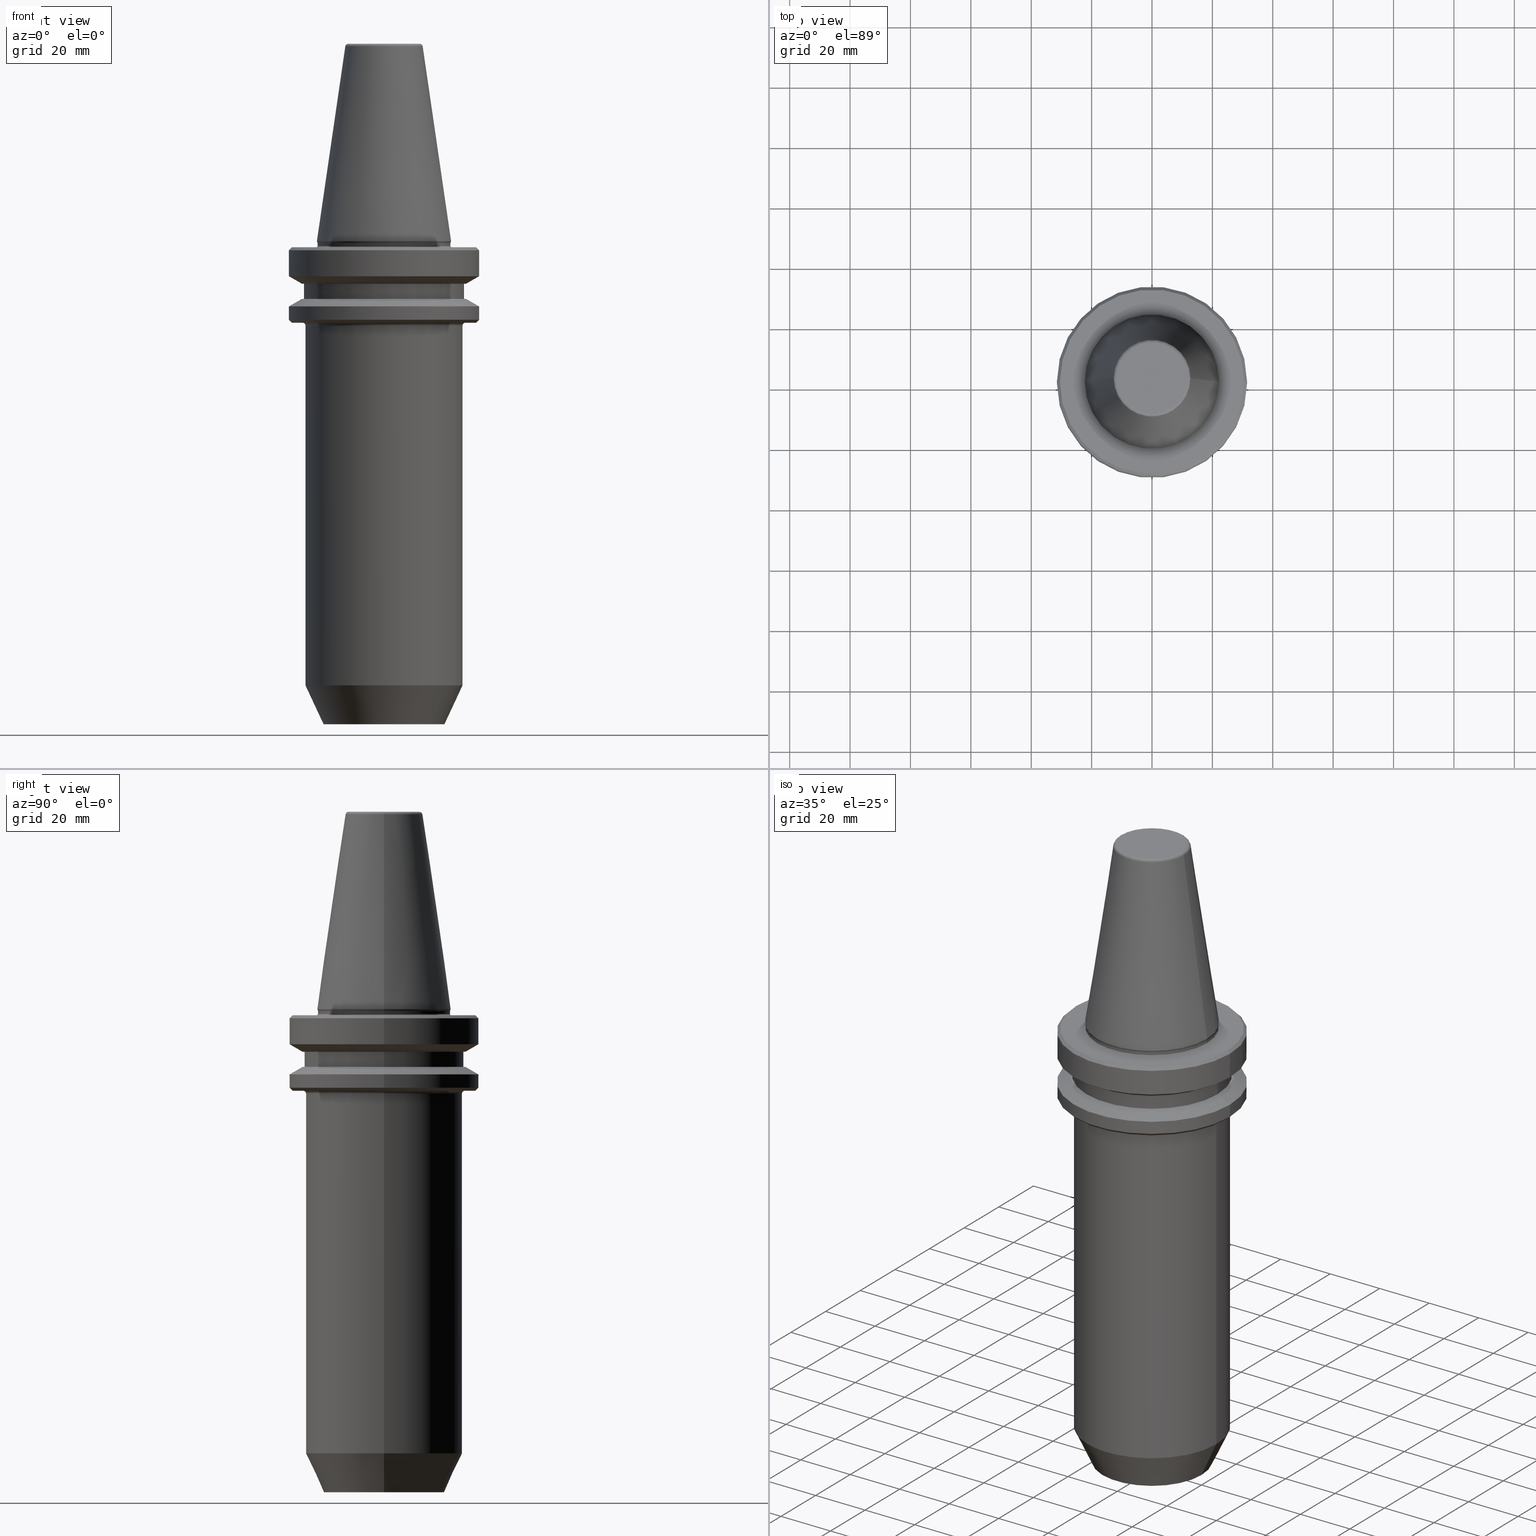
[diagram: canonical four-view strip — front | top / right | iso, engineering-drawing reading convention]
A machine part, canonical four-view strip (front | top / right | iso — engineering-drawing reading convention). The complete STEP part file that produces these views, byte-faithful:
ISO-10303-21;
HEADER;
FILE_DESCRIPTION (( 'STEP AP203' ),
    '1' );
FILE_NAME ('BT40 WE20 160 AD-6.3G15000 SL.STEP',
    '2019-05-22T09:21:48',
    ( '' ),
    ( '' ),
    'SwSTEP 2.0',
    'SolidWorks 2014',
    '' );
FILE_SCHEMA (( 'CONFIG_CONTROL_DESIGN' ));
ENDSEC;

DATA;
#1 = PERSON_AND_ORGANIZATION ( #1020, #66 ) ;
#2 = DATE_AND_TIME ( #5, #7 ) ;
#3 = EDGE_LOOP ( 'NONE', ( #566, #569 ) ) ;
#4 = CARTESIAN_POINT ( 'NONE',  ( -20.00000000000000000, 2.816687638038912400E-015, -159.3112867883404000 ) ) ;
#5 = CALENDAR_DATE ( 2019, 22, 5 ) ;
#6 = DIRECTION ( 'NONE',  ( -0.0000000000000000000, -0.0000000000000000000, 1.000000000000000000 ) ) ;
#7 = LOCAL_TIME ( 14, 51, 48.00000000000000000, #9 ) ;
#8 = DIRECTION ( 'NONE',  ( -0.3420201433261634300, 4.188538737683050000E-017, 0.9396926207857283500 ) ) ;
#9 = COORDINATED_UNIVERSAL_TIME_OFFSET ( 5, 30, .AHEAD. ) ;
#10 = APPLICATION_CONTEXT ( 'configuration controlled 3d designs of mechanical parts and assemblies' ) ;
#11 = CARTESIAN_POINT ( 'NONE',  ( 0.0000000000000000000, 0.0000000000000000000, 82.74845858742440900 ) ) ;
#12 = DIRECTION ( 'NONE',  ( -0.0000000000000000000, -0.0000000000000000000, 1.000000000000000000 ) ) ;
#13 = AXIS2_PLACEMENT_3D ( 'NONE', #1035, #572, #51 ) ;
#14 = APPROVAL_STATUS ( 'not_yet_approved' ) ;
#15 = DIRECTION ( 'NONE',  ( 1.000000000000000000, 0.0000000000000000000, 0.0000000000000000000 ) ) ;
#16 = PERSON_AND_ORGANIZATION ( #1020, #66 ) ;
#17 = PERSON_AND_ORGANIZATION ( #1020, #66 ) ;
#18 = ORIENTED_EDGE ( 'NONE', *, *, #553, .T. ) ;
#19 = CARTESIAN_POINT ( 'NONE',  ( 27.00000000000000000, 0.0000000000000000000, -27.31128678844368800 ) ) ;
#20 = PERSON_AND_ORGANIZATION ( #1020, #66 ) ;
#21 = APPROVAL_DATE_TIME ( #22, #424 ) ;
#22 = DATE_AND_TIME ( #25, #26 ) ;
#23 = DIRECTION ( 'NONE',  ( -1.000000000000000000, 0.0000000000000000000, 0.0000000000000000000 ) ) ;
#24 = AXIS2_PLACEMENT_3D ( 'NONE', #1051, #953, #264 ) ;
#25 = CALENDAR_DATE ( 2019, 22, 5 ) ;
#26 = LOCAL_TIME ( 14, 51, 48.00000000000000000, #27 ) ;
#27 = COORDINATED_UNIVERSAL_TIME_OFFSET ( 5, 30, .AHEAD. ) ;
#28 = ORIENTED_EDGE ( 'NONE', *, *, #500, .F. ) ;
#29 = EDGE_CURVE ( 'NONE', #277, #489, #915, .T. ) ;
#30 = DIRECTION ( 'NONE',  ( 1.000000000000000000, 0.0000000000000000000, 0.0000000000000000000 ) ) ;
#31 = APPROVAL_PERSON_ORGANIZATION ( #33, #424, #609 ) ;
#32 = DIRECTION ( 'NONE',  ( -0.0000000000000000000, -0.0000000000000000000, 1.000000000000000000 ) ) ;
#33 = PERSON_AND_ORGANIZATION ( #1020, #66 ) ;
#34 = EDGE_CURVE ( 'NONE', #1048, #466, #940, .T. ) ;
#35 = DATE_AND_TIME ( #36, #41 ) ;
#36 = CALENDAR_DATE ( 2019, 22, 5 ) ;
#37 = DESIGN_CONTEXT ( 'detailed design', #845, 'design' ) ;
#38 = CARTESIAN_POINT ( 'NONE',  ( 0.0000000000000000000, 0.0000000000000000000, 82.74845858742440900 ) ) ;
#39 = ADVANCED_FACE ( 'NONE', ( #442 ), #869, .T. ) ;
#40 = CARTESIAN_POINT ( 'NONE',  ( -27.16962701892278200, 3.327319676275122900E-015, -13.41128678834002700 ) ) ;
#41 = LOCAL_TIME ( 14, 51, 48.00000000000000000, #42 ) ;
#42 = COORDINATED_UNIVERSAL_TIME_OFFSET ( 5, 30, .AHEAD. ) ;
#43 = CARTESIAN_POINT ( 'NONE',  ( 0.0000000000000000000, 0.0000000000000000000, -27.31128678844368800 ) ) ;
#44 = PERSON_AND_ORGANIZATION ( #1020, #66 ) ;
#45 = EDGE_CURVE ( 'NONE', #840, #978, #966, .T. ) ;
#46 = DIRECTION ( 'NONE',  ( -0.0000000000000000000, -0.0000000000000000000, 1.000000000000000000 ) ) ;
#47 = APPROVAL_DATE_TIME ( #52, #398 ) ;
#48 = DIRECTION ( 'NONE',  ( 0.7071067811865474600, 0.0000000000000000000, 0.7071067811865475700 ) ) ;
#49 = CARTESIAN_POINT ( 'NONE',  ( -27.16962701892278200, 3.592478546794634700E-015, -13.41128678834002700 ) ) ;
#50 = DIRECTION ( 'NONE',  ( 0.0000000000000000000, 0.0000000000000000000, -1.000000000000000000 ) ) ;
#51 = DIRECTION ( 'NONE',  ( 1.000000000000000000, 0.0000000000000000000, 0.0000000000000000000 ) ) ;
#52 = DATE_AND_TIME ( #53, #54 ) ;
#53 = CALENDAR_DATE ( 2019, 22, 5 ) ;
#54 = LOCAL_TIME ( 14, 51, 48.00000000000000000, #57 ) ;
#55 = ORIENTED_EDGE ( 'NONE', *, *, #721, .T. ) ;
#56 = DIRECTION ( 'NONE',  ( 1.000000000000000000, 0.0000000000000000000, 0.0000000000000000000 ) ) ;
#57 = COORDINATED_UNIVERSAL_TIME_OFFSET ( 5, 30, .AHEAD. ) ;
#58 = APPROVAL_PERSON_ORGANIZATION ( #59, #398, #432 ) ;
#59 = PERSON_AND_ORGANIZATION ( #1020, #66 ) ;
#60 = CARTESIAN_POINT ( 'NONE',  ( 0.0000000000000000000, 0.0000000000000000000, -0.8112867883400820500 ) ) ;
#61 = ORIENTED_EDGE ( 'NONE', *, *, #128, .T. ) ;
#62 = CARTESIAN_POINT ( 'NONE',  ( 0.0000000000000000000, 0.0000000000000000000, -18.41128678844344800 ) ) ;
#63 = AXIS2_PLACEMENT_3D ( 'NONE', #136, #393, #967 ) ;
#64 = CARTESIAN_POINT ( 'NONE',  ( -22.22499999999971700, 0.0000000000000000000, 0.6887132116596417200 ) ) ;
#65 = PERSON_AND_ORGANIZATION ( #1020, #66 ) ;
#66 = ORGANIZATION ( 'UNSPECIFIED', 'UNSPECIFIED', '' ) ;
#67 = ADVANCED_FACE ( 'NONE', ( #671, #441 ), #1001, .F. ) ;
#68 = DIRECTION ( 'NONE',  ( -0.0000000000000000000, -0.0000000000000000000, 1.000000000000000000 ) ) ;
#69 = CARTESIAN_POINT ( 'NONE',  ( -21.99999999999982600, 2.724839128102840900E-015, -0.8112867883400820500 ) ) ;
#70 = CC_DESIGN_PERSON_AND_ORGANIZATION_ASSIGNMENT ( #44, #999, ( #880 ) ) ;
#71 = CARTESIAN_POINT ( 'NONE',  ( 30.49999999999997200, 0.0000000000000000000, -26.31128678844368800 ) ) ;
#72 = DIRECTION ( 'NONE',  ( 1.000000000000000000, 0.0000000000000000000, 0.0000000000000000000 ) ) ;
#73 = EDGE_LOOP ( 'NONE', ( #486, #1014, #579, #702 ) ) ;
#74 = DIRECTION ( 'NONE',  ( 0.0000000000000000000, 0.0000000000000000000, -1.000000000000000000 ) ) ;
#75 = CONICAL_SURFACE ( 'NONE', #903, 31.50000000000019500, 1.047197551196600500 ) ;
#76 = EDGE_CURVE ( 'NONE', #859, #372, #879, .T. ) ;
#77 = CARTESIAN_POINT ( 'NONE',  ( -22.22499999999971700, 2.721777511104957700E-015, 0.6887132116596417200 ) ) ;
#78 = CARTESIAN_POINT ( 'NONE',  ( 0.0000000000000000000, 0.0000000000000000000, -20.91142879476059900 ) ) ;
#79 = SHAPE_DEFINITION_REPRESENTATION ( #795, #720 ) ;
#80 = CARTESIAN_POINT ( 'NONE',  ( -31.50000000000019500, 3.857637417314186400E-015, 82.74845858742440900 ) ) ;
#81 = ORIENTED_EDGE ( 'NONE', *, *, #847, .F. ) ;
#82 = AXIS2_PLACEMENT_3D ( 'NONE', #339, #930, #437 ) ;
#83 = CC_DESIGN_APPROVAL ( #398, ( #880 ) ) ;
#84 = PERSON_AND_ORGANIZATION_ROLE ( 'creator' ) ;
#85 = DIRECTION ( 'NONE',  ( -0.0000000000000000000, -0.0000000000000000000, 1.000000000000000000 ) ) ;
#86 = CONICAL_SURFACE ( 'NONE', #705, 22.22499999999971700, 0.1448138077623186700 ) ;
#87 = CARTESIAN_POINT ( 'NONE',  ( 31.49999999999986100, 0.0000000000000000000, 82.74845858742440900 ) ) ;
#88 = CIRCLE ( 'NONE', #639, 22.49999999999985400 ) ;
#89 = ADVANCED_FACE ( 'NONE', ( #439 ), #216, .F. ) ;
#90 = CARTESIAN_POINT ( 'NONE',  ( -11.82266927716790800, 1.447859408766143000E-015, 65.08871321166032000 ) ) ;
#91 = AXIS2_PLACEMENT_3D ( 'NONE', #881, #380, #567 ) ;
#92 = DIRECTION ( 'NONE',  ( 0.0000000000000000000, 0.0000000000000000000, -1.000000000000000000 ) ) ;
#93 = AXIS2_PLACEMENT_3D ( 'NONE', #960, #288, #481 ) ;
#94 = ADVANCED_FACE ( 'NONE', ( #887 ), #753, .T. ) ;
#95 = CIRCLE ( 'NONE', #868, 26.00000000000000000 ) ;
#96 = FACE_OUTER_BOUND ( 'NONE', #867, .T. ) ;
#97 = DIRECTION ( 'NONE',  ( -0.0000000000000000000, -0.0000000000000000000, 1.000000000000000000 ) ) ;
#98 = CARTESIAN_POINT ( 'NONE',  ( 27.16962701892278200, 0.0000000000000000000, -13.41128678834002700 ) ) ;
#99 = CYLINDRICAL_SURFACE ( 'NONE', #654, 31.49999999999986100 ) ;
#100 = EDGE_CURVE ( 'NONE', #602, #951, #623, .T. ) ;
#101 = FACE_OUTER_BOUND ( 'NONE', #618, .T. ) ;
#102 = CYLINDRICAL_SURFACE ( 'NONE', #724, 31.50000000000019500 ) ;
#103 = CIRCLE ( 'NONE', #447, 31.49999999999986100 ) ;
#104 = DIRECTION ( 'NONE',  ( 1.000000000000000000, 0.0000000000000000000, 0.0000000000000000000 ) ) ;
#105 = AXIS2_PLACEMENT_3D ( 'NONE', #1037, #575, #56 ) ;
#106 = AXIS2_PLACEMENT_3D ( 'NONE', #199, #954, #476 ) ;
#107 = EDGE_CURVE ( 'NONE', #712, #550, #739, .T. ) ;
#108 = DIRECTION ( 'NONE',  ( 1.000000000000000000, 0.0000000000000000000, 0.0000000000000000000 ) ) ;
#109 = CARTESIAN_POINT ( 'NONE',  ( 0.0000000000000000000, 0.0000000000000000000, 65.23302140054848100 ) ) ;
#110 = EDGE_LOOP ( 'NONE', ( #592, #723, #425, #206 ) ) ;
#111 = CIRCLE ( 'NONE', #738, 26.50000000000007800 ) ;
#112 = FACE_OUTER_BOUND ( 'NONE', #808, .T. ) ;
#113 = EDGE_CURVE ( 'NONE', #329, #1009, #754, .T. ) ;
#114 = LINE ( 'NONE', #815, #799 ) ;
#115 = DIRECTION ( 'NONE',  ( 1.000000000000000000, 0.0000000000000000000, 0.0000000000000000000 ) ) ;
#116 = UNCERTAINTY_MEASURE_WITH_UNIT (LENGTH_MEASURE( 1.000000000000000100E-005 ), #920, 'distance_accuracy_value', 'NONE');
#117 = AXIS2_PLACEMENT_3D ( 'NONE', #90, #982, #510 ) ;
#118 = FACE_OUTER_BOUND ( 'NONE', #391, .T. ) ;
#119 = FACE_OUTER_BOUND ( 'NONE', #677, .T. ) ;
#120 = DIRECTION ( 'NONE',  ( 1.000000000000000000, 0.0000000000000000000, 0.0000000000000000000 ) ) ;
#121 = EDGE_CURVE ( 'NONE', #550, #938, #731, .T. ) ;
#122 = PLANE ( 'NONE',  #106 ) ;
#123 = EDGE_LOOP ( 'NONE', ( #125, #532, #898, #719 ) ) ;
#124 = EDGE_CURVE ( 'NONE', #1008, #938, #750, .T. ) ;
#125 = ORIENTED_EDGE ( 'NONE', *, *, #494, .F. ) ;
#126 = APPROVAL_PERSON_ORGANIZATION ( #1, #997, #336 ) ;
#127 = EDGE_LOOP ( 'NONE', ( #908, #468 ) ) ;
#128 = EDGE_CURVE ( 'NONE', #1039, #585, #752, .T. ) ;
#129 = FACE_BOUND ( 'NONE', #3, .T. ) ;
#130 = DIRECTION ( 'NONE',  ( -0.0000000000000000000, -0.0000000000000000000, 1.000000000000000000 ) ) ;
#131 = EDGE_CURVE ( 'NONE', #1009, #329, #771, .T. ) ;
#132 = DIRECTION ( 'NONE',  ( 1.000000000000000000, 0.0000000000000000000, 0.0000000000000000000 ) ) ;
#133 = ORIENTED_EDGE ( 'NONE', *, *, #1030, .F. ) ;
#134 = EDGE_CURVE ( 'NONE', #455, #996, #748, .T. ) ;
#135 = ORIENTED_EDGE ( 'NONE', *, *, #916, .F. ) ;
#136 = CARTESIAN_POINT ( 'NONE',  ( 0.0000000000000000000, 0.0000000000000000000, -5.551115123125782700E-014 ) ) ;
#137 = CIRCLE ( 'NONE', #669, 11.82266927716801800 ) ;
#138 = TOROIDAL_SURFACE ( 'NONE', #411, 27.00000000000000000, 1.000000000000002700 ) ;
#139 = EDGE_LOOP ( 'NONE', ( #1041, #459, #821, #573 ) ) ;
#140 = DIRECTION ( 'NONE',  ( 1.000000000000000000, 0.0000000000000000000, 0.0000000000000000000 ) ) ;
#141 = ADVANCED_FACE ( 'NONE', ( #766 ), #760, .F. ) ;
#142 = DIRECTION ( 'NONE',  ( -0.0000000000000000000, -0.0000000000000000000, 1.000000000000000000 ) ) ;
#143 = AXIS2_PLACEMENT_3D ( 'NONE', #62, #646, #132 ) ;
#144 = CARTESIAN_POINT ( 'NONE',  ( 0.0000000000000000000, 0.0000000000000000000, -159.3112867883404000 ) ) ;
#145 = DIRECTION ( 'NONE',  ( -0.0000000000000000000, -0.0000000000000000000, 1.000000000000000000 ) ) ;
#146 = EDGE_CURVE ( 'NONE', #660, #585, #780, .T. ) ;
#147 = VECTOR ( 'NONE', #395, 1000.000000000000000 ) ;
#148 = DIRECTION ( 'NONE',  ( 1.224646799147353200E-016, 1.000000000000000000, 0.0000000000000000000 ) ) ;
#149 = FACE_OUTER_BOUND ( 'NONE', #139, .T. ) ;
#150 = LINE ( 'NONE', #894, #147 ) ;
#151 = CIRCLE ( 'NONE', #870, 27.00000000000000000 ) ;
#152 = DIRECTION ( 'NONE',  ( 1.000000000000000000, 0.0000000000000000000, 0.0000000000000000000 ) ) ;
#153 = CIRCLE ( 'NONE', #802, 0.5000000000000282000 ) ;
#154 = CIRCLE ( 'NONE', #763, 0.5000000000000282000 ) ;
#155 = CIRCLE ( 'NONE', #964, 30.49999999999986100 ) ;
#156 = DIRECTION ( 'NONE',  ( -0.0000000000000000000, -0.0000000000000000000, 1.000000000000000000 ) ) ;
#157 = CARTESIAN_POINT ( 'NONE',  ( 31.50000000000019500, 0.0000000000000000000, -20.91142879476059900 ) ) ;
#158 = DIRECTION ( 'NONE',  ( -0.0000000000000000000, -0.0000000000000000000, 1.000000000000000000 ) ) ;
#159 = DIRECTION ( 'NONE',  ( 1.000000000000000000, 0.0000000000000000000, 0.0000000000000000000 ) ) ;
#160 = FACE_OUTER_BOUND ( 'NONE', #675, .T. ) ;
#161 = TOROIDAL_SURFACE ( 'NONE', #63, 22.39999999999986400, 0.4000000000001126500 ) ;
#162 = DIRECTION ( 'NONE',  ( -0.0000000000000000000, -0.0000000000000000000, 1.000000000000000000 ) ) ;
#163 = CYLINDRICAL_SURFACE ( 'NONE', #825, 31.50000000000019500 ) ;
#164 = LINE ( 'NONE', #64, #192 ) ;
#165 = DIRECTION ( 'NONE',  ( -0.0000000000000000000, -0.0000000000000000000, 1.000000000000000000 ) ) ;
#166 = CYLINDRICAL_SURFACE ( 'NONE', #590, 31.49999999999986100 ) ;
#167 = CIRCLE ( 'NONE', #663, 22.02412295168547700 ) ;
#168 = DIRECTION ( 'NONE',  ( -0.0000000000000000000, -0.0000000000000000000, 1.000000000000000000 ) ) ;
#169 = APPLICATION_PROTOCOL_DEFINITION ( 'international standard', 'config_control_design', 1994, #10 ) ;
#170 = ORIENTED_EDGE ( 'NONE', *, *, #113, .F. ) ;
#171 = DIRECTION ( 'NONE',  ( -0.0000000000000000000, -0.0000000000000000000, 1.000000000000000000 ) ) ;
#172 = DIRECTION ( 'NONE',  ( -0.0000000000000000000, -0.0000000000000000000, 1.000000000000000000 ) ) ;
#173 = SECURITY_CLASSIFICATION_LEVEL ( 'unclassified' ) ;
#174 = CARTESIAN_POINT ( 'NONE',  ( 0.0000000000000000000, 0.0000000000000000000, -10.91114478202370800 ) ) ;
#175 = DIRECTION ( 'NONE',  ( 1.224646799147353200E-016, 1.000000000000000000, 0.0000000000000000000 ) ) ;
#176 = ADVANCED_FACE ( 'NONE', ( #758 ), #793, .T. ) ;
#177 = CONICAL_SURFACE ( 'NONE', #93, 31.50000000000019500, 1.047197551196600500 ) ;
#178 = CARTESIAN_POINT ( 'NONE',  ( 0.0000000000000000000, 0.0000000000000000000, -26.31128678844368800 ) ) ;
#179 = CARTESIAN_POINT ( 'NONE',  ( 0.0000000000000000000, 0.0000000000000000000, -5.551115123125782700E-014 ) ) ;
#180 = CIRCLE ( 'NONE', #143, 27.16962701892167300 ) ;
#181 = ADVANCED_FACE ( 'NONE', ( #764 ), #788, .T. ) ;
#182 = CIRCLE ( 'NONE', #465, 21.99999999999979700 ) ;
#183 = FACE_OUTER_BOUND ( 'NONE', #123, .T. ) ;
#184 = CARTESIAN_POINT ( 'NONE',  ( 0.0000000000000000000, 0.0000000000000000000, -0.8112867883400820500 ) ) ;
#185 = FACE_OUTER_BOUND ( 'NONE', #902, .T. ) ;
#186 = CYLINDRICAL_SURFACE ( 'NONE', #853, 21.99999999999981200 ) ;
#187 = CARTESIAN_POINT ( 'NONE',  ( -31.50000000000019500, 3.857637417314186400E-015, -20.91142879476059900 ) ) ;
#188 = DIRECTION ( 'NONE',  ( 0.4226182617406928400, 0.0000000000000000000, 0.9063077870366530500 ) ) ;
#189 = CIRCLE ( 'NONE', #105, 26.50000000000007800 ) ;
#190 = CYLINDRICAL_SURFACE ( 'NONE', #91, 26.50000000000007800 ) ;
#191 = TOROIDAL_SURFACE ( 'NONE', #323, 11.82266927716790800, 1.000000000000029100 ) ;
#192 = VECTOR ( 'NONE', #294, 999.9999999999998900 ) ;
#193 = CIRCLE ( 'NONE', #13, 12.81220206925715000 ) ;
#194 = FACE_OUTER_BOUND ( 'NONE', #642, .T. ) ;
#195 = FACE_OUTER_BOUND ( 'NONE', #983, .T. ) ;
#196 = DIRECTION ( 'NONE',  ( 1.000000000000000000, 0.0000000000000000000, 0.0000000000000000000 ) ) ;
#197 = DIRECTION ( 'NONE',  ( 1.000000000000000000, 0.0000000000000000000, 0.0000000000000000000 ) ) ;
#198 = CARTESIAN_POINT ( 'NONE',  ( 26.50000000000007800, 0.0000000000000000000, -18.41128678844344800 ) ) ;
#199 = CARTESIAN_POINT ( 'NONE',  ( 0.0000000000000000000, 26.50000000000007800, -18.41128678844344800 ) ) ;
#200 = VECTOR ( 'NONE', #48, 1000.000000000000000 ) ;
#201 = LINE ( 'NONE', #722, #211 ) ;
#202 = FACE_OUTER_BOUND ( 'NONE', #606, .T. ) ;
#203 = LINE ( 'NONE', #1033, #200 ) ;
#204 = EDGE_CURVE ( 'NONE', #658, #353, #789, .T. ) ;
#205 = CONICAL_SURFACE ( 'NONE', #733, 22.02412295168547700, 0.3490658503993923600 ) ;
#206 = ORIENTED_EDGE ( 'NONE', *, *, #414, .F. ) ;
#207 = LINE ( 'NONE', #1031, #209 ) ;
#208 = CARTESIAN_POINT ( 'NONE',  ( 0.0000000000000000000, 0.0000000000000000000, 82.74845858742440900 ) ) ;
#209 = VECTOR ( 'NONE', #633, 1000.000000000000000 ) ;
#210 = FACE_OUTER_BOUND ( 'NONE', #578, .T. ) ;
#211 = VECTOR ( 'NONE', #810, 1000.000000000000000 ) ;
#212 = FACE_BOUND ( 'NONE', #871, .T. ) ;
#213 = CYLINDRICAL_SURFACE ( 'NONE', #561, 26.00000000000000000 ) ;
#214 = LINE ( 'NONE', #596, #423 ) ;
#215 = DIRECTION ( 'NONE',  ( -0.0000000000000000000, -0.0000000000000000000, 1.000000000000000000 ) ) ;
#216 = PLANE ( 'NONE',  #715 ) ;
#217 = ADVANCED_FACE ( 'NONE', ( #794 ), #861, .T. ) ;
#218 = CARTESIAN_POINT ( 'NONE',  ( 22.49999999999985400, 0.0000000000000000000, -0.8112867883400820500 ) ) ;
#219 = CIRCLE ( 'NONE', #257, 26.00000000000000000 ) ;
#220 = ORIENTED_EDGE ( 'NONE', *, *, #597, .F. ) ;
#221 = FACE_OUTER_BOUND ( 'NONE', #284, .T. ) ;
#222 = CARTESIAN_POINT ( 'NONE',  ( 0.0000000000000000000, 0.0000000000000000000, -13.41128678834002700 ) ) ;
#223 = FACE_OUTER_BOUND ( 'NONE', #110, .T. ) ;
#224 = CYLINDRICAL_SURFACE ( 'NONE', #603, 26.50000000000007800 ) ;
#225 = VECTOR ( 'NONE', #711, 1000.000000000000100 ) ;
#226 = DIRECTION ( 'NONE',  ( 0.0000000000000000000, -0.0000000000000000000, 1.000000000000000000 ) ) ;
#227 = CARTESIAN_POINT ( 'NONE',  ( 20.00000000000000000, 0.0000000000000000000, -159.3112867883404000 ) ) ;
#228 = PRODUCT_RELATED_PRODUCT_CATEGORY ( 'detail', '', ( #558 ) ) ;
#229 = CARTESIAN_POINT ( 'NONE',  ( 0.0000000000000000000, 0.0000000000000000000, -26.31128678844368800 ) ) ;
#230 = DIRECTION ( 'NONE',  ( 1.000000000000000000, 0.0000000000000000000, 0.0000000000000000000 ) ) ;
#231 = CIRCLE ( 'NONE', #335, 30.49999999999986100 ) ;
#232 = DIRECTION ( 'NONE',  ( 1.000000000000000000, 0.0000000000000000000, 0.0000000000000000000 ) ) ;
#233 = AXIS2_PLACEMENT_3D ( 'NONE', #174, #142, #588 ) ;
#234 = CONICAL_SURFACE ( 'NONE', #876, 30.49999999999997200, 0.7853981633974482800 ) ;
#235 = ORIENTED_EDGE ( 'NONE', *, *, #452, .F. ) ;
#236 = CIRCLE ( 'NONE', #565, 0.4000000000001126500 ) ;
#237 = CIRCLE ( 'NONE', #555, 31.50000000000019500 ) ;
#238 = CARTESIAN_POINT ( 'NONE',  ( 0.0000000000000000000, 0.0000000000000000000, -20.91142879476059900 ) ) ;
#239 = CIRCLE ( 'NONE', #989, 22.22499999999971700 ) ;
#240 = CARTESIAN_POINT ( 'NONE',  ( 0.0000000000000000000, 0.0000000000000000000, -0.8112867883400820500 ) ) ;
#241 = FACE_OUTER_BOUND ( 'NONE', #266, .T. ) ;
#242 = AXIS2_PLACEMENT_3D ( 'NONE', #222, #621, #451 ) ;
#243 = CARTESIAN_POINT ( 'NONE',  ( 0.0000000000000000000, 0.0000000000000000000, 66.08871321166032000 ) ) ;
#244 = DIRECTION ( 'NONE',  ( 1.000000000000000000, 0.0000000000000000000, 0.0000000000000000000 ) ) ;
#245 = CARTESIAN_POINT ( 'NONE',  ( 27.16962701892278200, 0.0000000000000000000, -13.41128678834002700 ) ) ;
#246 = PERSON_AND_ORGANIZATION_ROLE ( 'design_owner' ) ;
#247 = DIRECTION ( 'NONE',  ( 0.0000000000000000000, 0.0000000000000000000, -1.000000000000000000 ) ) ;
#248 = CARTESIAN_POINT ( 'NONE',  ( -21.99999999999979700, 2.694222958124153500E-015, -5.551115123125782700E-014 ) ) ;
#249 = FACE_OUTER_BOUND ( 'NONE', #679, .T. ) ;
#250 = LINE ( 'NONE', #40, #225 ) ;
#251 = DATE_TIME_ROLE ( 'classification_date' ) ;
#252 = ADVANCED_FACE ( 'NONE', ( #806 ), #856, .T. ) ;
#253 = CIRCLE ( 'NONE', #616, 12.81220206925715000 ) ;
#254 = VECTOR ( 'NONE', #12, 1000.000000000000000 ) ;
#255 = VECTOR ( 'NONE', #188, 1000.000000000000000 ) ;
#256 = CARTESIAN_POINT ( 'NONE',  ( -30.49999999999997200, 3.796405077356805400E-015, -26.31128678844368800 ) ) ;
#257 = AXIS2_PLACEMENT_3D ( 'NONE', #43, #629, #120 ) ;
#258 = DIRECTION ( 'NONE',  ( -1.000000000000000000, 0.0000000000000000000, -0.0000000000000000000 ) ) ;
#259 = DIRECTION ( 'NONE',  ( 1.000000000000000000, 0.0000000000000000000, 0.0000000000000000000 ) ) ;
#260 = CIRCLE ( 'NONE', #937, 26.50000000000007800 ) ;
#261 = PLANE ( 'NONE',  #973 ) ;
#262 = CARTESIAN_POINT ( 'NONE',  ( -26.00000000000000000, 3.184081677783118200E-015, -27.31128678844368800 ) ) ;
#263 = FACE_OUTER_BOUND ( 'NONE', #1024, .T. ) ;
#264 = DIRECTION ( 'NONE',  ( 1.000000000000000000, 0.0000000000000000000, 0.0000000000000000000 ) ) ;
#265 = CALENDAR_DATE ( 2019, 22, 5 ) ;
#266 = EDGE_LOOP ( 'NONE', ( #495, #526, #501, #401 ) ) ;
#267 = DIRECTION ( 'NONE',  ( 1.000000000000000000, 0.0000000000000000000, 0.0000000000000000000 ) ) ;
#268 = LOCAL_TIME ( 14, 51, 48.00000000000000000, #272 ) ;
#269 = VECTOR ( 'NONE', #943, 1000.000000000000000 ) ;
#270 = CARTESIAN_POINT ( 'NONE',  ( 26.00000000000000000, 0.0000000000000000000, -146.4442452652828000 ) ) ;
#271 = ADVANCED_FACE ( 'NONE', ( #829 ), #816, .T. ) ;
#272 = COORDINATED_UNIVERSAL_TIME_OFFSET ( 5, 30, .AHEAD. ) ;
#273 = CIRCLE ( 'NONE', #82, 26.00000000000000000 ) ;
#274 = DIRECTION ( 'NONE',  ( -0.0000000000000000000, -0.0000000000000000000, 1.000000000000000000 ) ) ;
#275 = CIRCLE ( 'NONE', #862, 31.50000000000019500 ) ;
#276 = ORIENTED_EDGE ( 'NONE', *, *, #522, .T. ) ;
#277 = VERTEX_POINT ( 'NONE', #991 ) ;
#278 = CARTESIAN_POINT ( 'NONE',  ( 11.82266927716801800, 0.0000000000000000000, 66.08871321166032000 ) ) ;
#279 = ORIENTED_EDGE ( 'NONE', *, *, #518, .T. ) ;
#280 = DIRECTION ( 'NONE',  ( -0.0000000000000000000, -0.0000000000000000000, 1.000000000000000000 ) ) ;
#281 = CARTESIAN_POINT ( 'NONE',  ( 0.0000000000000000000, 0.0000000000000000000, -1.311286788340082500 ) ) ;
#282 = DIRECTION ( 'NONE',  ( 1.000000000000000000, 0.0000000000000000000, 0.0000000000000000000 ) ) ;
#283 = ORIENTED_EDGE ( 'NONE', *, *, #435, .T. ) ;
#284 = EDGE_LOOP ( 'NONE', ( #987, #827, #471, #998 ) ) ;
#285 = CIRCLE ( 'NONE', #765, 1.000000000000000900 ) ;
#286 = CIRCLE ( 'NONE', #698, 1.000000000000004400 ) ;
#287 = DIRECTION ( 'NONE',  ( -0.0000000000000000000, -0.0000000000000000000, 1.000000000000000000 ) ) ;
#288 = DIRECTION ( 'NONE',  ( 0.0000000000000000000, 0.0000000000000000000, -1.000000000000000000 ) ) ;
#289 = VECTOR ( 'NONE', #8, 1000.000000000000000 ) ;
#290 = LINE ( 'NONE', #80, #254 ) ;
#291 = LINE ( 'NONE', #990, #375 ) ;
#292 = CONICAL_SURFACE ( 'NONE', #905, 20.00000000000000000, 0.4363323129985751100 ) ;
#293 = EDGE_CURVE ( 'NONE', #658, #624, #114, .T. ) ;
#294 = DIRECTION ( 'NONE',  ( -0.1443081888881784800, 0.0000000000000000000, -0.9895327920891828800 ) ) ;
#295 = ADVANCED_FACE ( 'NONE', ( #785 ), #163, .T. ) ;
#296 = APPROVAL_DATE_TIME ( #300, #997 ) ;
#297 = EDGE_CURVE ( 'NONE', #883, #950, #927, .T. ) ;
#298 = ORIENTED_EDGE ( 'NONE', *, *, #452, .T. ) ;
#299 = CIRCLE ( 'NONE', #467, 27.16962701892278200 ) ;
#300 = DATE_AND_TIME ( #265, #268 ) ;
#301 = DIRECTION ( 'NONE',  ( 0.0000000000000000000, 0.0000000000000000000, -1.000000000000000000 ) ) ;
#302 = AXIS2_PLACEMENT_3D ( 'NONE', #776, #247, #772 ) ;
#303 = ORIENTED_EDGE ( 'NONE', *, *, #645, .F. ) ;
#304 = CARTESIAN_POINT ( 'NONE',  ( 0.0000000000000000000, 0.0000000000000000000, -27.31128678844368800 ) ) ;
#305 = AXIS2_PLACEMENT_3D ( 'NONE', #860, #768, #433 ) ;
#306 = CARTESIAN_POINT ( 'NONE',  ( 26.50000000000007800, 0.0000000000000000000, -13.41128678834002700 ) ) ;
#307 = FACE_OUTER_BOUND ( 'NONE', #656, .T. ) ;
#308 = CIRCLE ( 'NONE', #888, 22.22499999999971700 ) ;
#309 = DIRECTION ( 'NONE',  ( 1.000000000000000000, 0.0000000000000000000, 0.0000000000000000000 ) ) ;
#310 = ORIENTED_EDGE ( 'NONE', *, *, #617, .T. ) ;
#311 = DIRECTION ( 'NONE',  ( -0.0000000000000000000, -0.0000000000000000000, 1.000000000000000000 ) ) ;
#312 = DIRECTION ( 'NONE',  ( -0.0000000000000000000, -0.0000000000000000000, 1.000000000000000000 ) ) ;
#313 = ORIENTED_EDGE ( 'NONE', *, *, #107, .T. ) ;
#314 = CARTESIAN_POINT ( 'NONE',  ( 0.0000000000000000000, 0.0000000000000000000, -1.311286788340082500 ) ) ;
#315 = ORIENTED_EDGE ( 'NONE', *, *, #146, .F. ) ;
#316 = LINE ( 'NONE', #855, #328 ) ;
#317 = LINE ( 'NONE', #87, #349 ) ;
#318 = DIRECTION ( 'NONE',  ( -0.0000000000000000000, -0.0000000000000000000, 1.000000000000000000 ) ) ;
#319 = CIRCLE ( 'NONE', #631, 21.99999999999979700 ) ;
#320 = DIRECTION ( 'NONE',  ( -1.000000000000000000, 0.0000000000000000000, 0.0000000000000000000 ) ) ;
#321 = DIRECTION ( 'NONE',  ( -0.0000000000000000000, -0.0000000000000000000, 1.000000000000000000 ) ) ;
#322 = CARTESIAN_POINT ( 'NONE',  ( 0.0000000000000000000, 0.0000000000000000000, -25.31128678844346400 ) ) ;
#323 = AXIS2_PLACEMENT_3D ( 'NONE', #889, #215, #577 ) ;
#324 = DIRECTION ( 'NONE',  ( 1.000000000000000000, 0.0000000000000000000, 0.0000000000000000000 ) ) ;
#325 = DIRECTION ( 'NONE',  ( -0.0000000000000000000, -0.0000000000000000000, 1.000000000000000000 ) ) ;
#326 = DIRECTION ( 'NONE',  ( -0.0000000000000000000, -0.0000000000000000000, 1.000000000000000000 ) ) ;
#327 = AXIS2_PLACEMENT_3D ( 'NONE', #691, #665, #152 ) ;
#328 = VECTOR ( 'NONE', #340, 1000.000000000000000 ) ;
#329 = VERTEX_POINT ( 'NONE', #256 ) ;
#330 = APPLICATION_PROTOCOL_DEFINITION ( 'international standard', 'config_control_design', 1994, #845 ) ;
#331 = AXIS2_PLACEMENT_3D ( 'NONE', #520, #172, #1022 ) ;
#332 = DIRECTION ( 'NONE',  ( -1.000000000000000000, 0.0000000000000000000, 0.0000000000000000000 ) ) ;
#333 = TOROIDAL_SURFACE ( 'NONE', #736, 22.39999999999986400, 0.4000000000001126500 ) ;
#334 = ADVANCED_FACE ( 'NONE', ( #798 ), #839, .F. ) ;
#335 = AXIS2_PLACEMENT_3D ( 'NONE', #281, #878, #374 ) ;
#336 = APPROVAL_ROLE ( '' ) ;
#337 = EDGE_CURVE ( 'NONE', #688, #602, #797, .T. ) ;
#338 = DIRECTION ( 'NONE',  ( -0.0000000000000000000, -0.0000000000000000000, 1.000000000000000000 ) ) ;
#339 = CARTESIAN_POINT ( 'NONE',  ( 0.0000000000000000000, 0.0000000000000000000, -27.31128678844368800 ) ) ;
#340 = DIRECTION ( 'NONE',  ( -0.0000000000000000000, -0.0000000000000000000, 1.000000000000000000 ) ) ;
#341 = CONICAL_SURFACE ( 'NONE', #643, 31.49999999999986100, 0.7853981633974482800 ) ;
#342 = CIRCLE ( 'NONE', #743, 21.99999999999982600 ) ;
#343 = AXIS2_PLACEMENT_3D ( 'NONE', #838, #321, #757 ) ;
#344 = VECTOR ( 'NONE', #863, 999.9999999999998900 ) ;
#345 = DIRECTION ( 'NONE',  ( -0.0000000000000000000, -0.0000000000000000000, 1.000000000000000000 ) ) ;
#346 = CARTESIAN_POINT ( 'NONE',  ( 0.0000000000000000000, 0.0000000000000000000, 0.6887132116596417200 ) ) ;
#347 = EDGE_CURVE ( 'NONE', #353, #454, #672, .T. ) ;
#348 = FACE_OUTER_BOUND ( 'NONE', #836, .T. ) ;
#349 = VECTOR ( 'NONE', #697, 1000.000000000000000 ) ;
#350 = LINE ( 'NONE', #456, #269 ) ;
#351 = LINE ( 'NONE', #98, #362 ) ;
#352 = CARTESIAN_POINT ( 'NONE',  ( 0.0000000000000000000, 0.0000000000000000000, -146.4442452652828000 ) ) ;
#353 = VERTEX_POINT ( 'NONE', #921 ) ;
#354 = CARTESIAN_POINT ( 'NONE',  ( 22.22499999999971700, 2.721777511104957700E-015, 0.6887132116596417200 ) ) ;
#355 = AXIS2_PLACEMENT_3D ( 'NONE', #818, #683, #258 ) ;
#356 = DIRECTION ( 'NONE',  ( 1.000000000000000000, 0.0000000000000000000, 0.0000000000000000000 ) ) ;
#357 = DIRECTION ( 'NONE',  ( 1.000000000000000000, 0.0000000000000000000, 0.0000000000000000000 ) ) ;
#358 = AXIS2_PLACEMENT_3D ( 'NONE', #322, #535, #846 ) ;
#359 = LINE ( 'NONE', #620, #255 ) ;
#360 = CC_DESIGN_SECURITY_CLASSIFICATION ( #390, ( #434 ) ) ;
#361 = FACE_BOUND ( 'NONE', #703, .T. ) ;
#362 = VECTOR ( 'NONE', #1017, 1000.000000000000100 ) ;
#363 = CONICAL_SURFACE ( 'NONE', #804, 22.22499999999971700, 0.1448138077623186700 ) ;
#364 = ADVANCED_FACE ( 'NONE', ( #1034 ), #957, .T. ) ;
#365 = DIRECTION ( 'NONE',  ( -0.0000000000000000000, -0.0000000000000000000, 1.000000000000000000 ) ) ;
#366 = FACE_OUTER_BOUND ( 'NONE', #1010, .T. ) ;
#367 = AXIS2_PLACEMENT_3D ( 'NONE', #576, #165, #140 ) ;
#368 = CARTESIAN_POINT ( 'NONE',  ( 0.0000000000000000000, 0.0000000000000000000, 0.1368080573304758500 ) ) ;
#369 = AXIS2_PLACEMENT_3D ( 'NONE', #144, #744, #244 ) ;
#370 = DIRECTION ( 'NONE',  ( 0.0000000000000000000, -1.000000000000000000, 0.0000000000000000000 ) ) ;
#371 = DIRECTION ( 'NONE',  ( -0.0000000000000000000, -0.0000000000000000000, 1.000000000000000000 ) ) ;
#372 = VERTEX_POINT ( 'NONE', #278 ) ;
#373 = CONICAL_SURFACE ( 'NONE', #475, 22.02412295168547700, 0.3490658503993923600 ) ;
#374 = DIRECTION ( 'NONE',  ( 1.000000000000000000, 0.0000000000000000000, 0.0000000000000000000 ) ) ;
#375 = VECTOR ( 'NONE', #601, 1000.000000000000000 ) ;
#376 = CC_DESIGN_DATE_AND_TIME_ASSIGNMENT ( #2, #251, ( #390 ) ) ;
#377 = CIRCLE ( 'NONE', #835, 27.00000000000000000 ) ;
#378 = LINE ( 'NONE', #844, #385 ) ;
#379 = CIRCLE ( 'NONE', #931, 31.49999999999986100 ) ;
#380 = DIRECTION ( 'NONE',  ( -0.0000000000000000000, -0.0000000000000000000, 1.000000000000000000 ) ) ;
#381 = FACE_OUTER_BOUND ( 'NONE', #981, .T. ) ;
#382 = AXIS2_PLACEMENT_3D ( 'NONE', #919, #610, #668 ) ;
#383 = AXIS2_PLACEMENT_3D ( 'NONE', #314, #612, #30 ) ;
#384 = DIRECTION ( 'NONE',  ( -0.0000000000000000000, -0.0000000000000000000, 1.000000000000000000 ) ) ;
#385 = VECTOR ( 'NONE', #312, 1000.000000000000000 ) ;
#386 = LINE ( 'NONE', #682, #289 ) ;
#387 = EDGE_CURVE ( 'NONE', #950, #372, #824, .T. ) ;
#388 = ORIENTED_EDGE ( 'NONE', *, *, #970, .T. ) ;
#389 = CARTESIAN_POINT ( 'NONE',  ( 31.49999999999986100, 0.0000000000000000000, -10.91114478202370800 ) ) ;
#390 = SECURITY_CLASSIFICATION ( '', '', #173 ) ;
#391 = EDGE_LOOP ( 'NONE', ( #388, #1005, #866, #812 ) ) ;
#392 = ORIENTED_EDGE ( 'NONE', *, *, #773, .T. ) ;
#393 = DIRECTION ( 'NONE',  ( -0.0000000000000000000, -0.0000000000000000000, 1.000000000000000000 ) ) ;
#394 = CC_DESIGN_PERSON_AND_ORGANIZATION_ASSIGNMENT ( #16, #774, ( #390 ) ) ;
#395 = DIRECTION ( 'NONE',  ( -0.0000000000000000000, -0.0000000000000000000, 1.000000000000000000 ) ) ;
#396 = ADVANCED_FACE ( 'NONE', ( #817 ), #261, .F. ) ;
#397 = EDGE_CURVE ( 'NONE', #961, #951, #260, .T. ) ;
#398 = APPROVAL ( #924, 'UNSPECIFIED' ) ;
#399 = LINE ( 'NONE', #354, #344 ) ;
#400 = DIRECTION ( 'NONE',  ( -0.0000000000000000000, -0.0000000000000000000, 1.000000000000000000 ) ) ;
#401 = ORIENTED_EDGE ( 'NONE', *, *, #792, .F. ) ;
#402 = CIRCLE ( 'NONE', #975, 27.16962701892167300 ) ;
#403 = CIRCLE ( 'NONE', #233, 31.49999999999986100 ) ;
#404 = CC_DESIGN_PERSON_AND_ORGANIZATION_ASSIGNMENT ( #17, #687, ( #434 ) ) ;
#405 = TOROIDAL_SURFACE ( 'NONE', #963, 22.49999999999985400, 0.5000000000000282000 ) ;
#406 = CARTESIAN_POINT ( 'NONE',  ( -26.50000000000007800, 3.245314017740495600E-015, -13.41128678834002700 ) ) ;
#407 = CC_DESIGN_PERSON_AND_ORGANIZATION_ASSIGNMENT ( #20, #84, ( #434 ) ) ;
#408 = DIRECTION ( 'NONE',  ( 0.7071067811865474600, 8.659560562354931600E-017, -0.7071067811865475700 ) ) ;
#409 = FACE_OUTER_BOUND ( 'NONE', #563, .T. ) ;
#410 = CIRCLE ( 'NONE', #242, 27.16962701892278200 ) ;
#411 = AXIS2_PLACEMENT_3D ( 'NONE', #304, #68, #901 ) ;
#412 = DIRECTION ( 'NONE',  ( 0.3420201433261634300, 0.0000000000000000000, 0.9396926207857283500 ) ) ;
#413 = DIRECTION ( 'NONE',  ( -0.0000000000000000000, -0.0000000000000000000, 1.000000000000000000 ) ) ;
#414 = EDGE_CURVE ( 'NONE', #636, #586, #939, .T. ) ;
#415 = CARTESIAN_POINT ( 'NONE',  ( 11.82266927716790800, 0.0000000000000000000, 65.08871321166032000 ) ) ;
#416 = CC_DESIGN_APPROVAL ( #424, ( #434 ) ) ;
#417 = DIRECTION ( 'NONE',  ( 1.000000000000000000, 0.0000000000000000000, 0.0000000000000000000 ) ) ;
#418 = FACE_OUTER_BOUND ( 'NONE', #726, .T. ) ;
#419 = VECTOR ( 'NONE', #670, 1000.000000000000000 ) ;
#420 = DIRECTION ( 'NONE',  ( -0.0000000000000000000, -0.0000000000000000000, 1.000000000000000000 ) ) ;
#421 = CIRCLE ( 'NONE', #497, 26.00000000000000000 ) ;
#422 = EDGE_CURVE ( 'NONE', #466, #1048, #651, .T. ) ;
#423 = VECTOR ( 'NONE', #1038, 1000.000000000000000 ) ;
#424 = APPROVAL ( #14, 'UNSPECIFIED' ) ;
#425 = ORIENTED_EDGE ( 'NONE', *, *, #694, .F. ) ;
#426 =( NAMED_UNIT ( * ) PLANE_ANGLE_UNIT ( ) SI_UNIT ( $, .RADIAN. ) );
#427 = ORIENTED_EDGE ( 'NONE', *, *, #916, .T. ) ;
#428 = CARTESIAN_POINT ( 'NONE',  ( 0.0000000000000000000, 0.0000000000000000000, -13.41128678834002700 ) ) ;
#429 = EDGE_CURVE ( 'NONE', #1048, #912, #214, .T. ) ;
#430 = DIRECTION ( 'NONE',  ( -0.0000000000000000000, -0.0000000000000000000, 1.000000000000000000 ) ) ;
#431 = EDGE_CURVE ( 'NONE', #840, #900, #918, .T. ) ;
#432 = APPROVAL_ROLE ( '' ) ;
#433 = DIRECTION ( 'NONE',  ( 1.000000000000000000, 0.0000000000000000000, 0.0000000000000000000 ) ) ;
#434 = PRODUCT_DEFINITION_FORMATION_WITH_SPECIFIED_SOURCE ( 'ANY', '', #558, .NOT_KNOWN. ) ;
#435 = EDGE_CURVE ( 'NONE', #912, #636, #421, .T. ) ;
#436 = ORIENTED_EDGE ( 'NONE', *, *, #113, .T. ) ;
#437 = DIRECTION ( 'NONE',  ( 1.000000000000000000, 0.0000000000000000000, 0.0000000000000000000 ) ) ;
#438 = ORIENTED_EDGE ( 'NONE', *, *, #914, .T. ) ;
#439 = FACE_OUTER_BOUND ( 'NONE', #127, .T. ) ;
#440 = ADVANCED_FACE ( 'NONE', ( #418 ), #373, .T. ) ;
#441 = FACE_OUTER_BOUND ( 'NONE', #872, .T. ) ;
#442 = FACE_OUTER_BOUND ( 'NONE', #819, .T. ) ;
#443 = CC_DESIGN_DATE_AND_TIME_ASSIGNMENT ( #35, #527, ( #880 ) ) ;
#444 = DIRECTION ( 'NONE',  ( 1.000000000000000000, 0.0000000000000000000, 0.0000000000000000000 ) ) ;
#445 = ORIENTED_EDGE ( 'NONE', *, *, #851, .F. ) ;
#446 = ADVANCED_FACE ( 'NONE', ( #409 ), #405, .F. ) ;
#447 = AXIS2_PLACEMENT_3D ( 'NONE', #831, #311, #906 ) ;
#448 = EDGE_LOOP ( 'NONE', ( #298, #619, #546, #457 ) ) ;
#449 = DIRECTION ( 'NONE',  ( -0.0000000000000000000, -0.0000000000000000000, 1.000000000000000000 ) ) ;
#450 = CARTESIAN_POINT ( 'NONE',  ( -26.50000000000007800, 3.245314017740495600E-015, -18.41128678844344800 ) ) ;
#451 = DIRECTION ( 'NONE',  ( 1.000000000000000000, 0.0000000000000000000, 0.0000000000000000000 ) ) ;
#452 = EDGE_CURVE ( 'NONE', #514, #770, #299, .T. ) ;
#453 = EDGE_LOOP ( 'NONE', ( #474, #635, #483, #980 ) ) ;
#454 = VERTEX_POINT ( 'NONE', #248 ) ;
#455 = VERTEX_POINT ( 'NONE', #685 ) ;
#456 = CARTESIAN_POINT ( 'NONE',  ( 31.50000000000019500, 3.857637417314186400E-015, -20.91142879476059900 ) ) ;
#457 = ORIENTED_EDGE ( 'NONE', *, *, #600, .F. ) ;
#458 = ORIENTED_EDGE ( 'NONE', *, *, #608, .F. ) ;
#459 = ORIENTED_EDGE ( 'NONE', *, *, #922, .F. ) ;
#460 = CARTESIAN_POINT ( 'NONE',  ( 0.0000000000000000000, 0.0000000000000000000, -26.31128678844368800 ) ) ;
#461 = EDGE_CURVE ( 'NONE', #770, #514, #410, .T. ) ;
#462 = EDGE_LOOP ( 'NONE', ( #279, #276, #854, #515 ) ) ;
#463 = CARTESIAN_POINT ( 'NONE',  ( 22.39999999999986400, 0.0000000000000000000, -5.551115123125782700E-014 ) ) ;
#464 = AXIS2_PLACEMENT_3D ( 'NONE', #583, #226, #828 ) ;
#465 = AXIS2_PLACEMENT_3D ( 'NONE', #886, #384, #962 ) ;
#466 = VERTEX_POINT ( 'NONE', #227 ) ;
#467 = AXIS2_PLACEMENT_3D ( 'NONE', #521, #833, #267 ) ;
#468 = ORIENTED_EDGE ( 'NONE', *, *, #387, .T. ) ;
#469 = VERTEX_POINT ( 'NONE', #1053 ) ;
#470 = DIRECTION ( 'NONE',  ( 1.000000000000000000, 0.0000000000000000000, 0.0000000000000000000 ) ) ;
#471 = ORIENTED_EDGE ( 'NONE', *, *, #293, .T. ) ;
#472 = CARTESIAN_POINT ( 'NONE',  ( 30.49999999999986100, 3.796405077356777800E-015, -1.311286788340082500 ) ) ;
#473 = ORIENTED_EDGE ( 'NONE', *, *, #131, .T. ) ;
#474 = ORIENTED_EDGE ( 'NONE', *, *, #45, .T. ) ;
#475 = AXIS2_PLACEMENT_3D ( 'NONE', #647, #430, #485 ) ;
#476 = DIRECTION ( 'NONE',  ( -1.000000000000000000, 0.0000000000000000000, -0.0000000000000000000 ) ) ;
#477 = EDGE_CURVE ( 'NONE', #704, #858, #403, .T. ) ;
#478 = ORIENTED_EDGE ( 'NONE', *, *, #29, .T. ) ;
#479 = EDGE_CURVE ( 'NONE', #624, #503, #308, .T. ) ;
#480 = ORIENTED_EDGE ( 'NONE', *, *, #718, .T. ) ;
#481 = DIRECTION ( 'NONE',  ( -1.000000000000000000, 0.0000000000000000000, 0.0000000000000000000 ) ) ;
#482 = ORIENTED_EDGE ( 'NONE', *, *, #746, .T. ) ;
#483 = ORIENTED_EDGE ( 'NONE', *, *, #553, .F. ) ;
#484 = ORIENTED_EDGE ( 'NONE', *, *, #431, .T. ) ;
#485 = DIRECTION ( 'NONE',  ( 1.000000000000000000, 0.0000000000000000000, 0.0000000000000000000 ) ) ;
#486 = ORIENTED_EDGE ( 'NONE', *, *, #524, .F. ) ;
#487 = ORIENTED_EDGE ( 'NONE', *, *, #134, .T. ) ;
#488 = CARTESIAN_POINT ( 'NONE',  ( 0.0000000000000000000, 0.0000000000000000000, 82.74845858742440900 ) ) ;
#489 = VERTEX_POINT ( 'NONE', #681 ) ;
#490 = EDGE_CURVE ( 'NONE', #938, #550, #379, .T. ) ;
#491 = AXIS2_PLACEMENT_3D ( 'NONE', #1016, #345, #556 ) ;
#492 = DIRECTION ( 'NONE',  ( -0.0000000000000000000, -0.0000000000000000000, 1.000000000000000000 ) ) ;
#493 = CARTESIAN_POINT ( 'NONE',  ( 21.99999999999979700, 0.0000000000000000000, -5.551115123125782700E-014 ) ) ;
#494 = EDGE_CURVE ( 'NONE', #704, #938, #378, .T. ) ;
#495 = ORIENTED_EDGE ( 'NONE', *, *, #100, .F. ) ;
#496 = ADVANCED_FACE ( 'NONE', ( #381 ), #292, .T. ) ;
#497 = AXIS2_PLACEMENT_3D ( 'NONE', #352, #162, #356 ) ;
#498 = ORIENTED_EDGE ( 'NONE', *, *, #34, .F. ) ;
#499 = DIRECTION ( 'NONE',  ( -0.0000000000000000000, -0.0000000000000000000, 1.000000000000000000 ) ) ;
#500 = EDGE_CURVE ( 'NONE', #688, #961, #291, .T. ) ;
#501 = ORIENTED_EDGE ( 'NONE', *, *, #500, .T. ) ;
#502 = ORIENTED_EDGE ( 'NONE', *, *, #640, .F. ) ;
#503 = VERTEX_POINT ( 'NONE', #77 ) ;
#504 = CARTESIAN_POINT ( 'NONE',  ( -11.82266927716801800, 1.508450817090320000E-015, 66.08871321166032000 ) ) ;
#505 = DIRECTION ( 'NONE',  ( 1.000000000000000000, 0.0000000000000000000, 0.0000000000000000000 ) ) ;
#506 = EDGE_CURVE ( 'NONE', #581, #660, #402, .T. ) ;
#507 = AXIS2_PLACEMENT_3D ( 'NONE', #676, #979, #582 ) ;
#508 = DIRECTION ( 'NONE',  ( -0.0000000000000000000, -0.0000000000000000000, 1.000000000000000000 ) ) ;
#509 = ORIENTED_EDGE ( 'NONE', *, *, #1025, .F. ) ;
#510 = DIRECTION ( 'NONE',  ( -1.000000000000000000, 1.224646799147353900E-016, 0.0000000000000000000 ) ) ;
#511 = ORIENTED_EDGE ( 'NONE', *, *, #832, .F. ) ;
#512 = ORIENTED_EDGE ( 'NONE', *, *, #941, .T. ) ;
#513 = EDGE_CURVE ( 'NONE', #353, #503, #386, .T. ) ;
#514 = VERTEX_POINT ( 'NONE', #245 ) ;
#515 = ORIENTED_EDGE ( 'NONE', *, *, #761, .F. ) ;
#516 = CARTESIAN_POINT ( 'NONE',  ( 21.99999999999981200, 0.0000000000000000000, 82.74845858742440900 ) ) ;
#517 = ORIENTED_EDGE ( 'NONE', *, *, #422, .F. ) ;
#518 = EDGE_CURVE ( 'NONE', #996, #455, #275, .T. ) ;
#519 = DIRECTION ( 'NONE',  ( 0.0000000000000000000, 0.0000000000000000000, 1.000000000000000000 ) ) ;
#520 = CARTESIAN_POINT ( 'NONE',  ( 0.0000000000000000000, 0.0000000000000000000, -0.8112867883400820500 ) ) ;
#521 = CARTESIAN_POINT ( 'NONE',  ( 0.0000000000000000000, 0.0000000000000000000, -13.41128678834002700 ) ) ;
#522 = EDGE_CURVE ( 'NONE', #455, #585, #290, .T. ) ;
#523 = CARTESIAN_POINT ( 'NONE',  ( 0.0000000000000000000, 0.0000000000000000000, 82.74845858742440900 ) ) ;
#524 = EDGE_CURVE ( 'NONE', #469, #741, #377, .T. ) ;
#525 = CARTESIAN_POINT ( 'NONE',  ( 0.0000000000000000000, 0.0000000000000000000, -2.311286788340083400 ) ) ;
#526 = ORIENTED_EDGE ( 'NONE', *, *, #1025, .T. ) ;
#527 = DATE_TIME_ROLE ( 'creation_date' ) ;
#528 = ORIENTED_EDGE ( 'NONE', *, *, #429, .F. ) ;
#529 = CARTESIAN_POINT ( 'NONE',  ( 0.0000000000000000000, 11.82266927716801800, 66.08871321166014900 ) ) ;
#530 = EDGE_CURVE ( 'NONE', #469, #587, #286, .T. ) ;
#531 = DIRECTION ( 'NONE',  ( -0.0000000000000000000, -0.0000000000000000000, 1.000000000000000000 ) ) ;
#532 = ORIENTED_EDGE ( 'NONE', *, *, #477, .T. ) ;
#533 = EDGE_CURVE ( 'NONE', #587, #586, #273, .T. ) ;
#534 = ORIENTED_EDGE ( 'NONE', *, *, #914, .F. ) ;
#535 = DIRECTION ( 'NONE',  ( -0.0000000000000000000, -0.0000000000000000000, 1.000000000000000000 ) ) ;
#536 = ORIENTED_EDGE ( 'NONE', *, *, #518, .F. ) ;
#537 = EDGE_CURVE ( 'NONE', #741, #586, #285, .T. ) ;
#538 = ADVANCED_FACE ( 'NONE', ( #307 ), #341, .T. ) ;
#539 = DIRECTION ( 'NONE',  ( 1.000000000000000000, 0.0000000000000000000, 0.0000000000000000000 ) ) ;
#540 = CARTESIAN_POINT ( 'NONE',  ( 0.0000000000000000000, 0.0000000000000000000, -2.311286788340083400 ) ) ;
#541 = EDGE_CURVE ( 'NONE', #978, #454, #316, .T. ) ;
#542 = ADVANCED_FACE ( 'NONE', ( #263 ), #333, .F. ) ;
#543 = ORIENTED_EDGE ( 'NONE', *, *, #387, .F. ) ;
#544 = DIRECTION ( 'NONE',  ( -1.000000000000000000, 0.0000000000000000000, -0.0000000000000000000 ) ) ;
#545 = DIRECTION ( 'NONE',  ( 0.0000000000000000000, 0.0000000000000000000, -1.000000000000000000 ) ) ;
#546 = ORIENTED_EDGE ( 'NONE', *, *, #970, .F. ) ;
#547 = ORIENTED_EDGE ( 'NONE', *, *, #435, .F. ) ;
#548 = CARTESIAN_POINT ( 'NONE',  ( 0.0000000000000000000, 0.0000000000000000000, 0.6887132116596417200 ) ) ;
#549 = ORIENTED_EDGE ( 'NONE', *, *, #885, .T. ) ;
#550 = VERTEX_POINT ( 'NONE', #1007 ) ;
#551 = EDGE_CURVE ( 'NONE', #978, #840, #342, .T. ) ;
#552 = EDGE_LOOP ( 'NONE', ( #955, #283, #1000, #958 ) ) ;
#553 = EDGE_CURVE ( 'NONE', #900, #454, #319, .T. ) ;
#554 = CARTESIAN_POINT ( 'NONE',  ( 22.22499999999971700, 0.0000000000000000000, 0.6887132116596417200 ) ) ;
#555 = AXIS2_PLACEMENT_3D ( 'NONE', #873, #365, #945 ) ;
#556 = DIRECTION ( 'NONE',  ( 1.000000000000000000, 0.0000000000000000000, 0.0000000000000000000 ) ) ;
#557 = DIRECTION ( 'NONE',  ( 0.0000000000000000000, 0.0000000000000000000, -1.000000000000000000 ) ) ;
#558 = PRODUCT ( 'BT40 WE20 160 AD-6.3G15000 SL', 'BT40 WE20 160 AD-6.3G15000 SL', '', ( #767 ) ) ;
#559 = ORIENTED_EDGE ( 'NONE', *, *, #337, .T. ) ;
#560 = CARTESIAN_POINT ( 'NONE',  ( -27.16962701892167300, 0.0000000000000000000, -18.41128678844344800 ) ) ;
#561 = AXIS2_PLACEMENT_3D ( 'NONE', #625, #274, #115 ) ;
#562 = ORIENTED_EDGE ( 'NONE', *, *, #600, .T. ) ;
#563 = EDGE_LOOP ( 'NONE', ( #971, #512, #591, #534 ) ) ;
#564 = ORIENTED_EDGE ( 'NONE', *, *, #461, .T. ) ;
#565 = AXIS2_PLACEMENT_3D ( 'NONE', #463, #1023, #557 ) ;
#566 = ORIENTED_EDGE ( 'NONE', *, *, #922, .T. ) ;
#567 = DIRECTION ( 'NONE',  ( 1.000000000000000000, 0.0000000000000000000, 0.0000000000000000000 ) ) ;
#568 = ORIENTED_EDGE ( 'NONE', *, *, #650, .F. ) ;
#569 = ORIENTED_EDGE ( 'NONE', *, *, #524, .T. ) ;
#570 = ORIENTED_EDGE ( 'NONE', *, *, #847, .T. ) ;
#571 = ORIENTED_EDGE ( 'NONE', *, *, #645, .T. ) ;
#572 = DIRECTION ( 'NONE',  ( -0.0000000000000000000, -0.0000000000000000000, 1.000000000000000000 ) ) ;
#573 = ORIENTED_EDGE ( 'NONE', *, *, #694, .T. ) ;
#574 = EDGE_CURVE ( 'NONE', #858, #550, #317, .T. ) ;
#575 = DIRECTION ( 'NONE',  ( -0.0000000000000000000, -0.0000000000000000000, 1.000000000000000000 ) ) ;
#576 = CARTESIAN_POINT ( 'NONE',  ( 0.0000000000000000000, 0.0000000000000000000, -13.41128678834002700 ) ) ;
#577 = DIRECTION ( 'NONE',  ( 1.000000000000000000, 0.0000000000000000000, 0.0000000000000000000 ) ) ;
#578 = EDGE_LOOP ( 'NONE', ( #570, #969 ) ) ;
#579 = ORIENTED_EDGE ( 'NONE', *, *, #533, .T. ) ;
#580 = ADVANCED_FACE ( 'NONE', ( #348 ), #363, .T. ) ;
#581 = VERTEX_POINT ( 'NONE', #699 ) ;
#582 = DIRECTION ( 'NONE',  ( 1.000000000000000000, 0.0000000000000000000, 0.0000000000000000000 ) ) ;
#583 = CARTESIAN_POINT ( 'NONE',  ( 0.0000000000000000000, 30.49999999999997200, -26.31128678844368800 ) ) ;
#584 = PLANE ( 'NONE',  #464 ) ;
#585 = VERTEX_POINT ( 'NONE', #187 ) ;
#586 = VERTEX_POINT ( 'NONE', #786 ) ;
#587 = VERTEX_POINT ( 'NONE', #262 ) ;
#588 = DIRECTION ( 'NONE',  ( 1.000000000000000000, 0.0000000000000000000, 0.0000000000000000000 ) ) ;
#589 = EDGE_LOOP ( 'NONE', ( #913, #436, #482, #1021 ) ) ;
#590 = AXIS2_PLACEMENT_3D ( 'NONE', #488, #730, #814 ) ;
#591 = ORIENTED_EDGE ( 'NONE', *, *, #1030, .T. ) ;
#592 = ORIENTED_EDGE ( 'NONE', *, *, #1040, .T. ) ;
#593 = CARTESIAN_POINT ( 'NONE',  ( -30.49999999999986100, 0.0000000000000000000, -1.311286788340082500 ) ) ;
#594 = ORIENTED_EDGE ( 'NONE', *, *, #479, .T. ) ;
#595 = DIRECTION ( 'NONE',  ( 1.000000000000000000, 0.0000000000000000000, 0.0000000000000000000 ) ) ;
#596 = CARTESIAN_POINT ( 'NONE',  ( -20.00000000000000000, 2.449293598294706500E-015, -159.3112867883404000 ) ) ;
#597 = EDGE_CURVE ( 'NONE', #859, #624, #399, .T. ) ;
#598 = ORIENTED_EDGE ( 'NONE', *, *, #513, .T. ) ;
#599 = CARTESIAN_POINT ( 'NONE',  ( 0.0000000000000000000, 0.0000000000000000000, 0.0000000000000000000 ) ) ;
#600 = EDGE_CURVE ( 'NONE', #514, #858, #351, .T. ) ;
#601 = DIRECTION ( 'NONE',  ( -0.0000000000000000000, -0.0000000000000000000, 1.000000000000000000 ) ) ;
#602 = VERTEX_POINT ( 'NONE', #450 ) ;
#603 = AXIS2_PLACEMENT_3D ( 'NONE', #706, #796, #104 ) ;
#604 = ORIENTED_EDGE ( 'NONE', *, *, #490, .T. ) ;
#605 = DIRECTION ( 'NONE',  ( -0.0000000000000000000, -0.0000000000000000000, 1.000000000000000000 ) ) ;
#606 = EDGE_LOOP ( 'NONE', ( #559, #680, #714, #28 ) ) ;
#607 = EDGE_LOOP ( 'NONE', ( #135, #313, #811, #1044 ) ) ;
#608 = EDGE_CURVE ( 'NONE', #466, #636, #359, .T. ) ;
#609 = APPROVAL_ROLE ( '' ) ;
#610 = DIRECTION ( 'NONE',  ( -0.0000000000000000000, -0.0000000000000000000, 1.000000000000000000 ) ) ;
#611 = ADVANCED_FACE ( 'NONE', ( #366, #361 ), #701, .F. ) ;
#612 = DIRECTION ( 'NONE',  ( -0.0000000000000000000, -0.0000000000000000000, 1.000000000000000000 ) ) ;
#613 = DIRECTION ( 'NONE',  ( 0.0000000000000000000, -1.000000000000000000, 0.0000000000000000000 ) ) ;
#614 = ORIENTED_EDGE ( 'NONE', *, *, #1050, .F. ) ;
#615 = ORIENTED_EDGE ( 'NONE', *, *, #608, .T. ) ;
#616 = AXIS2_PLACEMENT_3D ( 'NONE', #109, #708, #196 ) ;
#617 = EDGE_CURVE ( 'NONE', #581, #1039, #350, .T. ) ;
#618 = EDGE_LOOP ( 'NONE', ( #303, #742, #594, #729 ) ) ;
#619 = ORIENTED_EDGE ( 'NONE', *, *, #666, .T. ) ;
#620 = CARTESIAN_POINT ( 'NONE',  ( 20.00000000000000000, 0.0000000000000000000, -159.3112867883404000 ) ) ;
#621 = DIRECTION ( 'NONE',  ( -0.0000000000000000000, -0.0000000000000000000, 1.000000000000000000 ) ) ;
#622 = CARTESIAN_POINT ( 'NONE',  ( 0.0000000000000000000, 0.0000000000000000000, -26.31128678844368800 ) ) ;
#623 = LINE ( 'NONE', #932, #756 ) ;
#624 = VERTEX_POINT ( 'NONE', #554 ) ;
#625 = CARTESIAN_POINT ( 'NONE',  ( 0.0000000000000000000, 0.0000000000000000000, 82.74845858742440900 ) ) ;
#626 = ORIENTED_EDGE ( 'NONE', *, *, #347, .T. ) ;
#627 = ORIENTED_EDGE ( 'NONE', *, *, #746, .F. ) ;
#628 = ADVANCED_FACE ( 'NONE', ( #249 ), #234, .T. ) ;
#629 = DIRECTION ( 'NONE',  ( -0.0000000000000000000, -0.0000000000000000000, 1.000000000000000000 ) ) ;
#630 = AXIS2_PLACEMENT_3D ( 'NONE', #790, #865, #357 ) ;
#631 = AXIS2_PLACEMENT_3D ( 'NONE', #935, #449, #1012 ) ;
#632 = ORIENTED_EDGE ( 'NONE', *, *, #76, .T. ) ;
#633 = DIRECTION ( 'NONE',  ( -0.7071067811865474600, 8.659560562354931600E-017, 0.7071067811865475700 ) ) ;
#634 = EDGE_LOOP ( 'NONE', ( #678, #392, #632, #543 ) ) ;
#635 = ORIENTED_EDGE ( 'NONE', *, *, #541, .T. ) ;
#636 = VERTEX_POINT ( 'NONE', #270 ) ;
#637 = DIRECTION ( 'NONE',  ( 1.224646799147353200E-016, 1.000000000000000000, 0.0000000000000000000 ) ) ;
#638 = ORIENTED_EDGE ( 'NONE', *, *, #695, .T. ) ;
#639 = AXIS2_PLACEMENT_3D ( 'NONE', #674, #158, #762 ) ;
#640 = EDGE_CURVE ( 'NONE', #658, #900, #236, .T. ) ;
#641 = CARTESIAN_POINT ( 'NONE',  ( 21.99999999999982600, 0.0000000000000000000, -0.8112867883400820500 ) ) ;
#642 = EDGE_LOOP ( 'NONE', ( #807, #310, #61, #315 ) ) ;
#643 = AXIS2_PLACEMENT_3D ( 'NONE', #540, #849, #332 ) ;
#644 = ORIENTED_EDGE ( 'NONE', *, *, #721, .F. ) ;
#645 = EDGE_CURVE ( 'NONE', #859, #883, #253, .T. ) ;
#646 = DIRECTION ( 'NONE',  ( -0.0000000000000000000, -0.0000000000000000000, 1.000000000000000000 ) ) ;
#647 = CARTESIAN_POINT ( 'NONE',  ( 0.0000000000000000000, 0.0000000000000000000, 0.1368080573304758500 ) ) ;
#648 = ORIENTED_EDGE ( 'NONE', *, *, #337, .F. ) ;
#649 = ORIENTED_EDGE ( 'NONE', *, *, #477, .F. ) ;
#650 = EDGE_CURVE ( 'NONE', #585, #1039, #237, .T. ) ;
#651 = CIRCLE ( 'NONE', #507, 20.00000000000000000 ) ;
#652 = CARTESIAN_POINT ( 'NONE',  ( 12.81220206925713600, 0.0000000000000000000, 65.23302140054848100 ) ) ;
#653 = CARTESIAN_POINT ( 'NONE',  ( 0.0000000000000000000, 0.0000000000000000000, -159.3112867883404000 ) ) ;
#654 = AXIS2_PLACEMENT_3D ( 'NONE', #749, #413, #230 ) ;
#655 = ADVANCED_FACE ( 'NONE', ( #241 ), #224, .T. ) ;
#656 = EDGE_LOOP ( 'NONE', ( #976, #644, #662, #604 ) ) ;
#657 = CARTESIAN_POINT ( 'NONE',  ( 0.0000000000000000000, 0.0000000000000000000, -26.31128678844368800 ) ) ;
#658 = VERTEX_POINT ( 'NONE', #1028 ) ;
#659 = EDGE_LOOP ( 'NONE', ( #874, #984, #438, #478 ) ) ;
#660 = VERTEX_POINT ( 'NONE', #560 ) ;
#661 = CARTESIAN_POINT ( 'NONE',  ( -22.49999999999985400, 2.755455298081526600E-015, -0.8112867883400820500 ) ) ;
#662 = ORIENTED_EDGE ( 'NONE', *, *, #124, .T. ) ;
#663 = AXIS2_PLACEMENT_3D ( 'NONE', #965, #492, #1043 ) ;
#664 = ORIENTED_EDGE ( 'NONE', *, *, #640, .T. ) ;
#665 = DIRECTION ( 'NONE',  ( -0.0000000000000000000, -0.0000000000000000000, 1.000000000000000000 ) ) ;
#666 = EDGE_CURVE ( 'NONE', #770, #704, #250, .T. ) ;
#667 = CARTESIAN_POINT ( 'NONE',  ( 0.0000000000000000000, 0.0000000000000000000, 0.6887132116596417200 ) ) ;
#668 = DIRECTION ( 'NONE',  ( 1.000000000000000000, 0.0000000000000000000, 0.0000000000000000000 ) ) ;
#669 = AXIS2_PLACEMENT_3D ( 'NONE', #243, #841, #324 ) ;
#670 = DIRECTION ( 'NONE',  ( -0.0000000000000000000, -0.0000000000000000000, 1.000000000000000000 ) ) ;
#671 = FACE_BOUND ( 'NONE', #956, .T. ) ;
#672 = CIRCLE ( 'NONE', #1015, 0.4000000000001120400 ) ;
#673 = ORIENTED_EDGE ( 'NONE', *, *, #461, .F. ) ;
#674 = CARTESIAN_POINT ( 'NONE',  ( 0.0000000000000000000, 0.0000000000000000000, -1.311286788340082500 ) ) ;
#675 = EDGE_LOOP ( 'NONE', ( #445, #626, #893, #502 ) ) ;
#676 = CARTESIAN_POINT ( 'NONE',  ( 0.0000000000000000000, 0.0000000000000000000, -159.3112867883404000 ) ) ;
#677 = EDGE_LOOP ( 'NONE', ( #946, #170 ) ) ;
#678 = ORIENTED_EDGE ( 'NONE', *, *, #297, .F. ) ;
#679 = EDGE_LOOP ( 'NONE', ( #473, #480, #536, #627 ) ) ;
#680 = ORIENTED_EDGE ( 'NONE', *, *, #100, .T. ) ;
#681 = CARTESIAN_POINT ( 'NONE',  ( -22.49999999999985400, 2.755455298081526600E-015, -1.311286788340096300 ) ) ;
#682 = CARTESIAN_POINT ( 'NONE',  ( -22.02412295168547700, 2.697177167680937400E-015, 0.1368080573304758500 ) ) ;
#683 = DIRECTION ( 'NONE',  ( 0.0000000000000000000, 0.0000000000000000000, -1.000000000000000000 ) ) ;
#684 = DIRECTION ( 'NONE',  ( 1.000000000000000000, 0.0000000000000000000, 0.0000000000000000000 ) ) ;
#685 = CARTESIAN_POINT ( 'NONE',  ( -31.50000000000019500, 3.857637417314186400E-015, -25.31128678844346400 ) ) ;
#686 = CARTESIAN_POINT ( 'NONE',  ( 0.0000000000000000000, 0.0000000000000000000, -25.31128678844346400 ) ) ;
#687 = PERSON_AND_ORGANIZATION_ROLE ( 'design_supplier' ) ;
#688 = VERTEX_POINT ( 'NONE', #198 ) ;
#689 = DIRECTION ( 'NONE',  ( -0.0000000000000000000, -0.0000000000000000000, 1.000000000000000000 ) ) ;
#690 = ADVANCED_FACE ( 'NONE', ( #223 ), #213, .T. ) ;
#691 = CARTESIAN_POINT ( 'NONE',  ( 0.0000000000000000000, 0.0000000000000000000, 0.1368080573304758500 ) ) ;
#692 = CARTESIAN_POINT ( 'NONE',  ( -27.00000000000000000, 3.306546357697853700E-015, -27.31128678844368800 ) ) ;
#693 = ORIENTED_EDGE ( 'NONE', *, *, #617, .F. ) ;
#694 = EDGE_CURVE ( 'NONE', #586, #587, #219, .T. ) ;
#695 = EDGE_CURVE ( 'NONE', #503, #624, #239, .T. ) ;
#696 = CARTESIAN_POINT ( 'NONE',  ( 0.0000000000000000000, 0.0000000000000000000, 66.08871321166032000 ) ) ;
#697 = DIRECTION ( 'NONE',  ( -0.0000000000000000000, -0.0000000000000000000, 1.000000000000000000 ) ) ;
#698 = AXIS2_PLACEMENT_3D ( 'NONE', #692, #175, #777 ) ;
#699 = CARTESIAN_POINT ( 'NONE',  ( 27.16962701892167300, 3.592478546794586600E-015, -18.41128678844344800 ) ) ;
#700 = ORIENTED_EDGE ( 'NONE', *, *, #146, .T. ) ;
#701 = PLANE ( 'NONE',  #630 ) ;
#702 = ORIENTED_EDGE ( 'NONE', *, *, #537, .F. ) ;
#703 = EDGE_LOOP ( 'NONE', ( #942, #728 ) ) ;
#704 = VERTEX_POINT ( 'NONE', #1029 ) ;
#705 = AXIS2_PLACEMENT_3D ( 'NONE', #667, #755, #1052 ) ;
#706 = CARTESIAN_POINT ( 'NONE',  ( 0.0000000000000000000, 0.0000000000000000000, 82.74845858742440900 ) ) ;
#707 = DIRECTION ( 'NONE',  ( 0.0000000000000000000, -0.0000000000000000000, 1.000000000000000000 ) ) ;
#708 = DIRECTION ( 'NONE',  ( -0.0000000000000000000, -0.0000000000000000000, 1.000000000000000000 ) ) ;
#709 = ADVANCED_FACE ( 'NONE', ( #221 ), #205, .T. ) ;
#710 = DIRECTION ( 'NONE',  ( -0.0000000000000000000, -0.0000000000000000000, 1.000000000000000000 ) ) ;
#711 = DIRECTION ( 'NONE',  ( -0.8660254037844398200, 1.060575238724908400E-016, 0.4999999999999977200 ) ) ;
#712 = VERTEX_POINT ( 'NONE', #472 ) ;
#713 = CARTESIAN_POINT ( 'NONE',  ( 0.0000000000000000000, 20.00000000000000000, -159.3112867883404000 ) ) ;
#714 = ORIENTED_EDGE ( 'NONE', *, *, #397, .F. ) ;
#715 = AXIS2_PLACEMENT_3D ( 'NONE', #529, #1042, #544 ) ;
#716 = DIRECTION ( 'NONE',  ( 1.000000000000000000, 0.0000000000000000000, 0.0000000000000000000 ) ) ;
#717 = ORIENTED_EDGE ( 'NONE', *, *, #34, .T. ) ;
#718 = EDGE_CURVE ( 'NONE', #329, #455, #207, .T. ) ;
#719 = ORIENTED_EDGE ( 'NONE', *, *, #490, .F. ) ;
#720 = ADVANCED_BREP_SHAPE_REPRESENTATION ( 'BT40 WE20 160 AD-6.3G15000 SL', ( #928, #952 ), #986 ) ;
#721 = EDGE_CURVE ( 'NONE', #1008, #712, #231, .T. ) ;
#722 = CARTESIAN_POINT ( 'NONE',  ( 31.50000000000019500, 0.0000000000000000000, 82.74845858742440900 ) ) ;
#723 = ORIENTED_EDGE ( 'NONE', *, *, #926, .T. ) ;
#724 = AXIS2_PLACEMENT_3D ( 'NONE', #977, #400, #1049 ) ;
#725 = ORIENTED_EDGE ( 'NONE', *, *, #773, .F. ) ;
#726 = EDGE_LOOP ( 'NONE', ( #895, #598, #947, #820 ) ) ;
#727 = EDGE_LOOP ( 'NONE', ( #528, #717, #615, #547 ) ) ;
#728 = ORIENTED_EDGE ( 'NONE', *, *, #792, .T. ) ;
#729 = ORIENTED_EDGE ( 'NONE', *, *, #885, .F. ) ;
#730 = DIRECTION ( 'NONE',  ( -0.0000000000000000000, -0.0000000000000000000, 1.000000000000000000 ) ) ;
#731 = CIRCLE ( 'NONE', #890, 31.49999999999986100 ) ;
#732 = CARTESIAN_POINT ( 'NONE',  ( -12.81220206925713600, 1.569042225414484800E-015, 65.23302140054848100 ) ) ;
#733 = AXIS2_PLACEMENT_3D ( 'NONE', #368, #371, #716 ) ;
#734 = DIRECTION ( 'NONE',  ( -1.000000000000000000, 1.224646799147359900E-016, 0.0000000000000000000 ) ) ;
#735 = ADVANCED_FACE ( 'NONE', ( #212, #210 ), #122, .F. ) ;
#736 = AXIS2_PLACEMENT_3D ( 'NONE', #179, #933, #444 ) ;
#737 = VECTOR ( 'NONE', #408, 1000.000000000000000 ) ;
#738 = AXIS2_PLACEMENT_3D ( 'NONE', #834, #318, #911 ) ;
#739 = LINE ( 'NONE', #1011, #737 ) ;
#740 = EDGE_LOOP ( 'NONE', ( #517, #498 ) ) ;
#741 = VERTEX_POINT ( 'NONE', #805 ) ;
#742 = ORIENTED_EDGE ( 'NONE', *, *, #597, .T. ) ;
#743 = AXIS2_PLACEMENT_3D ( 'NONE', #184, #783, #259 ) ;
#744 = DIRECTION ( 'NONE',  ( -0.0000000000000000000, -0.0000000000000000000, 1.000000000000000000 ) ) ;
#745 = DIRECTION ( 'NONE',  ( 1.000000000000000000, 0.0000000000000000000, 0.0000000000000000000 ) ) ;
#746 = EDGE_CURVE ( 'NONE', #1009, #996, #203, .T. ) ;
#747 = DIRECTION ( 'NONE',  ( -1.000000000000000000, 1.224646799147350700E-016, 0.0000000000000000000 ) ) ;
#748 = CIRCLE ( 'NONE', #358, 31.50000000000019500 ) ;
#749 = CARTESIAN_POINT ( 'NONE',  ( 0.0000000000000000000, 0.0000000000000000000, 82.74845858742440900 ) ) ;
#750 = LINE ( 'NONE', #925, #775 ) ;
#751 = AXIS2_PLACEMENT_3D ( 'NONE', #460, #325, #108 ) ;
#752 = CIRCLE ( 'NONE', #759, 31.50000000000019500 ) ;
#753 = CONICAL_SURFACE ( 'NONE', #382, 27.16962701892278200, 1.047197551196600300 ) ;
#754 = CIRCLE ( 'NONE', #891, 30.49999999999997200 ) ;
#755 = DIRECTION ( 'NONE',  ( 0.0000000000000000000, 0.0000000000000000000, -1.000000000000000000 ) ) ;
#756 = VECTOR ( 'NONE', #1032, 1000.000000000000000 ) ;
#757 = DIRECTION ( 'NONE',  ( 1.000000000000000000, 0.0000000000000000000, 0.0000000000000000000 ) ) ;
#758 = FACE_OUTER_BOUND ( 'NONE', #552, .T. ) ;
#759 = AXIS2_PLACEMENT_3D ( 'NONE', #78, #1004, #813 ) ;
#760 = TOROIDAL_SURFACE ( 'NONE', #331, 22.49999999999985400, 0.5000000000000282000 ) ;
#761 = EDGE_CURVE ( 'NONE', #996, #1039, #201, .T. ) ;
#762 = DIRECTION ( 'NONE',  ( 1.000000000000000000, 0.0000000000000000000, 0.0000000000000000000 ) ) ;
#763 = AXIS2_PLACEMENT_3D ( 'NONE', #661, #148, #747 ) ;
#764 = FACE_OUTER_BOUND ( 'NONE', #634, .T. ) ;
#765 = AXIS2_PLACEMENT_3D ( 'NONE', #19, #613, #92 ) ;
#766 = FACE_OUTER_BOUND ( 'NONE', #659, .T. ) ;
#767 = MECHANICAL_CONTEXT ( 'NONE', #10, 'mechanical' ) ;
#768 = DIRECTION ( 'NONE',  ( -0.0000000000000000000, -0.0000000000000000000, 1.000000000000000000 ) ) ;
#769 = DIRECTION ( 'NONE',  ( 1.000000000000000000, 0.0000000000000000000, 0.0000000000000000000 ) ) ;
#770 = VERTEX_POINT ( 'NONE', #49 ) ;
#771 = CIRCLE ( 'NONE', #751, 30.49999999999997200 ) ;
#772 = DIRECTION ( 'NONE',  ( -1.000000000000000000, 0.0000000000000000000, 0.0000000000000000000 ) ) ;
#773 = EDGE_CURVE ( 'NONE', #883, #859, #193, .T. ) ;
#774 = PERSON_AND_ORGANIZATION_ROLE ( 'classification_officer' ) ;
#775 = VECTOR ( 'NONE', #934, 1000.000000000000000 ) ;
#776 = CARTESIAN_POINT ( 'NONE',  ( 0.0000000000000000000, 0.0000000000000000000, -2.311286788340083400 ) ) ;
#777 = DIRECTION ( 'NONE',  ( -1.000000000000000000, 1.224646799147352700E-016, 0.0000000000000000000 ) ) ;
#778 = AXIS2_PLACEMENT_3D ( 'NONE', #229, #97, #309 ) ;
#779 = ADVANCED_FACE ( 'NONE', ( #202 ), #190, .T. ) ;
#780 = LINE ( 'NONE', #907, #784 ) ;
#781 = ADVANCED_FACE ( 'NONE', ( #195 ), #186, .T. ) ;
#782 = CARTESIAN_POINT ( 'NONE',  ( 26.00000000000000000, 0.0000000000000000000, 82.74845858742440900 ) ) ;
#783 = DIRECTION ( 'NONE',  ( -0.0000000000000000000, -0.0000000000000000000, 1.000000000000000000 ) ) ;
#784 = VECTOR ( 'NONE', #994, 1000.000000000000000 ) ;
#785 = FACE_OUTER_BOUND ( 'NONE', #462, .T. ) ;
#786 = CARTESIAN_POINT ( 'NONE',  ( 26.00000000000000000, 0.0000000000000000000, -27.31128678844368800 ) ) ;
#787 = ORIENTED_EDGE ( 'NONE', *, *, #541, .F. ) ;
#788 = TOROIDAL_SURFACE ( 'NONE', #343, 11.82266927716790800, 1.000000000000029100 ) ;
#789 = CIRCLE ( 'NONE', #327, 22.02412295168547700 ) ;
#790 = CARTESIAN_POINT ( 'NONE',  ( 0.0000000000000000000, 26.50000000000007800, -13.41128678834002700 ) ) ;
#791 = DIRECTION ( 'NONE',  ( 1.000000000000000000, 0.0000000000000000000, 0.0000000000000000000 ) ) ;
#792 = EDGE_CURVE ( 'NONE', #951, #961, #189, .T. ) ;
#793 = CYLINDRICAL_SURFACE ( 'NONE', #882, 26.00000000000000000 ) ;
#794 = FACE_OUTER_BOUND ( 'NONE', #607, .T. ) ;
#795 = PRODUCT_DEFINITION_SHAPE ( 'NONE', 'NONE',  #880 ) ;
#796 = DIRECTION ( 'NONE',  ( -0.0000000000000000000, -0.0000000000000000000, 1.000000000000000000 ) ) ;
#797 = CIRCLE ( 'NONE', #491, 26.50000000000007800 ) ;
#798 = FACE_OUTER_BOUND ( 'NONE', #73, .T. ) ;
#799 = VECTOR ( 'NONE', #412, 1000.000000000000000 ) ;
#800 = CARTESIAN_POINT ( 'NONE',  ( -22.39999999999986400, 2.743208830090054500E-015, -5.551115123125782700E-014 ) ) ;
#801 = ORIENTED_EDGE ( 'NONE', *, *, #76, .F. ) ;
#802 = AXIS2_PLACEMENT_3D ( 'NONE', #218, #822, #301 ) ;
#803 = CARTESIAN_POINT ( 'NONE',  ( 0.0000000000000000000, 0.0000000000000000000, 0.6887132116596417200 ) ) ;
#804 = AXIS2_PLACEMENT_3D ( 'NONE', #346, #545, #23 ) ;
#805 = CARTESIAN_POINT ( 'NONE',  ( 27.00000000000000000, 0.0000000000000000000, -26.31128678844368800 ) ) ;
#806 = FACE_OUTER_BOUND ( 'NONE', #589, .T. ) ;
#807 = ORIENTED_EDGE ( 'NONE', *, *, #506, .F. ) ;
#808 = EDGE_LOOP ( 'NONE', ( #864, #487, #1019, #568 ) ) ;
#809 = ORIENTED_EDGE ( 'NONE', *, *, #551, .T. ) ;
#810 = DIRECTION ( 'NONE',  ( -0.0000000000000000000, -0.0000000000000000000, 1.000000000000000000 ) ) ;
#811 = ORIENTED_EDGE ( 'NONE', *, *, #121, .T. ) ;
#812 = ORIENTED_EDGE ( 'NONE', *, *, #574, .F. ) ;
#813 = DIRECTION ( 'NONE',  ( 1.000000000000000000, 0.0000000000000000000, 0.0000000000000000000 ) ) ;
#814 = DIRECTION ( 'NONE',  ( 1.000000000000000000, 0.0000000000000000000, 0.0000000000000000000 ) ) ;
#815 = CARTESIAN_POINT ( 'NONE',  ( 22.02412295168547700, 0.0000000000000000000, 0.1368080573304758500 ) ) ;
#816 = CONICAL_SURFACE ( 'NONE', #305, 20.00000000000000000, 0.4363323129985751100 ) ;
#817 = FACE_OUTER_BOUND ( 'NONE', #740, .T. ) ;
#818 = CARTESIAN_POINT ( 'NONE',  ( 0.0000000000000000000, 30.49999999999986100, -1.311286788340082500 ) ) ;
#819 = EDGE_LOOP ( 'NONE', ( #1013, #564, #562, #649 ) ) ;
#820 = ORIENTED_EDGE ( 'NONE', *, *, #293, .F. ) ;
#821 = ORIENTED_EDGE ( 'NONE', *, *, #537, .T. ) ;
#822 = DIRECTION ( 'NONE',  ( 0.0000000000000000000, -1.000000000000000000, 0.0000000000000000000 ) ) ;
#823 = ADVANCED_FACE ( 'NONE', ( #194 ), #177, .T. ) ;
#824 = CIRCLE ( 'NONE', #1036, 11.82266927716801800 ) ;
#825 = AXIS2_PLACEMENT_3D ( 'NONE', #11, #830, #988 ) ;
#826 = ORIENTED_EDGE ( 'NONE', *, *, #297, .T. ) ;
#827 = ORIENTED_EDGE ( 'NONE', *, *, #851, .T. ) ;
#828 = DIRECTION ( 'NONE',  ( 1.000000000000000000, 0.0000000000000000000, 0.0000000000000000000 ) ) ;
#829 = FACE_OUTER_BOUND ( 'NONE', #727, .T. ) ;
#830 = DIRECTION ( 'NONE',  ( -0.0000000000000000000, -0.0000000000000000000, 1.000000000000000000 ) ) ;
#831 = CARTESIAN_POINT ( 'NONE',  ( 0.0000000000000000000, 0.0000000000000000000, -10.91114478202370800 ) ) ;
#832 = EDGE_CURVE ( 'NONE', #454, #900, #182, .T. ) ;
#833 = DIRECTION ( 'NONE',  ( -0.0000000000000000000, -0.0000000000000000000, 1.000000000000000000 ) ) ;
#834 = CARTESIAN_POINT ( 'NONE',  ( 0.0000000000000000000, 0.0000000000000000000, -18.41128678844344800 ) ) ;
#835 = AXIS2_PLACEMENT_3D ( 'NONE', #1002, #531, #15 ) ;
#836 = EDGE_LOOP ( 'NONE', ( #220, #725, #549, #638 ) ) ;
#837 = DIRECTION ( 'NONE',  ( -0.0000000000000000000, -0.0000000000000000000, 1.000000000000000000 ) ) ;
#838 = CARTESIAN_POINT ( 'NONE',  ( 0.0000000000000000000, 0.0000000000000000000, 65.08871321166032000 ) ) ;
#839 = TOROIDAL_SURFACE ( 'NONE', #24, 27.00000000000000000, 1.000000000000002700 ) ;
#840 = VERTEX_POINT ( 'NONE', #641 ) ;
#841 = DIRECTION ( 'NONE',  ( -0.0000000000000000000, -0.0000000000000000000, 1.000000000000000000 ) ) ;
#842 = ORIENTED_EDGE ( 'NONE', *, *, #422, .T. ) ;
#843 = CARTESIAN_POINT ( 'NONE',  ( 0.0000000000000000000, 0.0000000000000000000, -18.41128678844344800 ) ) ;
#844 = CARTESIAN_POINT ( 'NONE',  ( -31.49999999999986100, 3.857637417314145300E-015, 82.74845858742440900 ) ) ;
#845 = APPLICATION_CONTEXT ( 'configuration controlled 3d designs of mechanical parts and assemblies' ) ;
#846 = DIRECTION ( 'NONE',  ( 1.000000000000000000, 0.0000000000000000000, 0.0000000000000000000 ) ) ;
#847 = EDGE_CURVE ( 'NONE', #660, #581, #180, .T. ) ;
#848 = APPROVAL_STATUS ( 'not_yet_approved' ) ;
#849 = DIRECTION ( 'NONE',  ( 0.0000000000000000000, 0.0000000000000000000, -1.000000000000000000 ) ) ;
#850 = ADVANCED_FACE ( 'NONE', ( #183 ), #166, .T. ) ;
#851 = EDGE_CURVE ( 'NONE', #353, #658, #167, .T. ) ;
#852 = VECTOR ( 'NONE', #508, 1000.000000000000000 ) ;
#853 = AXIS2_PLACEMENT_3D ( 'NONE', #208, #130, #282 ) ;
#854 = ORIENTED_EDGE ( 'NONE', *, *, #128, .F. ) ;
#855 = CARTESIAN_POINT ( 'NONE',  ( -21.99999999999981200, 2.694222958124154300E-015, 82.74845858742440900 ) ) ;
#856 = CONICAL_SURFACE ( 'NONE', #778, 30.49999999999997200, 0.7853981633974482800 ) ;
#857 = ADVANCED_FACE ( 'NONE', ( #185 ), #191, .T. ) ;
#858 = VERTEX_POINT ( 'NONE', #389 ) ;
#859 = VERTEX_POINT ( 'NONE', #652 ) ;
#860 = CARTESIAN_POINT ( 'NONE',  ( 0.0000000000000000000, 0.0000000000000000000, -159.3112867883404000 ) ) ;
#861 = CONICAL_SURFACE ( 'NONE', #302, 31.49999999999986100, 0.7853981633974482800 ) ;
#862 = AXIS2_PLACEMENT_3D ( 'NONE', #686, #171, #769 ) ;
#863 = DIRECTION ( 'NONE',  ( 0.1443081888881784800, 1.767265616126594100E-017, -0.9895327920891828800 ) ) ;
#864 = ORIENTED_EDGE ( 'NONE', *, *, #522, .F. ) ;
#865 = DIRECTION ( 'NONE',  ( 0.0000000000000000000, -0.0000000000000000000, 1.000000000000000000 ) ) ;
#866 = ORIENTED_EDGE ( 'NONE', *, *, #121, .F. ) ;
#867 = EDGE_LOOP ( 'NONE', ( #693, #81, #700, #877 ) ) ;
#868 = AXIS2_PLACEMENT_3D ( 'NONE', #917, #420, #992 ) ;
#869 = CONICAL_SURFACE ( 'NONE', #367, 27.16962701892278200, 1.047197551196600300 ) ;
#870 = AXIS2_PLACEMENT_3D ( 'NONE', #657, #145, #745 ) ;
#871 = EDGE_LOOP ( 'NONE', ( #648, #509 ) ) ;
#872 = EDGE_LOOP ( 'NONE', ( #55, #427 ) ) ;
#873 = CARTESIAN_POINT ( 'NONE',  ( 0.0000000000000000000, 0.0000000000000000000, -20.91142879476059900 ) ) ;
#874 = ORIENTED_EDGE ( 'NONE', *, *, #941, .F. ) ;
#875 = DIRECTION ( 'NONE',  ( 1.000000000000000000, 0.0000000000000000000, 0.0000000000000000000 ) ) ;
#876 = AXIS2_PLACEMENT_3D ( 'NONE', #622, #32, #1018 ) ;
#877 = ORIENTED_EDGE ( 'NONE', *, *, #650, .T. ) ;
#878 = DIRECTION ( 'NONE',  ( -0.0000000000000000000, -0.0000000000000000000, 1.000000000000000000 ) ) ;
#879 = CIRCLE ( 'NONE', #897, 1.000000000000028600 ) ;
#880 = PRODUCT_DEFINITION ( 'UNKNOWN', '', #434, #37 ) ;
#881 = CARTESIAN_POINT ( 'NONE',  ( 0.0000000000000000000, 0.0000000000000000000, 82.74845858742440900 ) ) ;
#882 = AXIS2_PLACEMENT_3D ( 'NONE', #523, #6, #417 ) ;
#883 = VERTEX_POINT ( 'NONE', #732 ) ;
#884 = ORIENTED_EDGE ( 'NONE', *, *, #204, .F. ) ;
#885 = EDGE_CURVE ( 'NONE', #883, #503, #164, .T. ) ;
#886 = CARTESIAN_POINT ( 'NONE',  ( 0.0000000000000000000, 0.0000000000000000000, -5.551115123125782700E-014 ) ) ;
#887 = FACE_OUTER_BOUND ( 'NONE', #448, .T. ) ;
#888 = AXIS2_PLACEMENT_3D ( 'NONE', #548, #837, #791 ) ;
#889 = CARTESIAN_POINT ( 'NONE',  ( 0.0000000000000000000, 0.0000000000000000000, 65.08871321166032000 ) ) ;
#890 = AXIS2_PLACEMENT_3D ( 'NONE', #910, #168, #985 ) ;
#891 = AXIS2_PLACEMENT_3D ( 'NONE', #178, #338, #899 ) ;
#892 = ADVANCED_FACE ( 'NONE', ( #160 ), #161, .F. ) ;
#893 = ORIENTED_EDGE ( 'NONE', *, *, #832, .T. ) ;
#894 = CARTESIAN_POINT ( 'NONE',  ( -26.00000000000000000, 3.184081677783118200E-015, 82.74845858742440900 ) ) ;
#895 = ORIENTED_EDGE ( 'NONE', *, *, #204, .T. ) ;
#896 = ORIENTED_EDGE ( 'NONE', *, *, #1040, .F. ) ;
#897 = AXIS2_PLACEMENT_3D ( 'NONE', #415, #370, #50 ) ;
#898 = ORIENTED_EDGE ( 'NONE', *, *, #574, .T. ) ;
#899 = DIRECTION ( 'NONE',  ( 1.000000000000000000, 0.0000000000000000000, 0.0000000000000000000 ) ) ;
#900 = VERTEX_POINT ( 'NONE', #493 ) ;
#901 = DIRECTION ( 'NONE',  ( 1.000000000000000000, 0.0000000000000000000, 0.0000000000000000000 ) ) ;
#902 = EDGE_LOOP ( 'NONE', ( #571, #826, #614, #801 ) ) ;
#903 = AXIS2_PLACEMENT_3D ( 'NONE', #238, #74, #320 ) ;
#904 = CARTESIAN_POINT ( 'NONE',  ( 31.50000000000019500, 0.0000000000000000000, -25.31128678844346400 ) ) ;
#905 = AXIS2_PLACEMENT_3D ( 'NONE', #653, #156, #470 ) ;
#906 = DIRECTION ( 'NONE',  ( 1.000000000000000000, 0.0000000000000000000, 0.0000000000000000000 ) ) ;
#907 = CARTESIAN_POINT ( 'NONE',  ( -31.50000000000019500, 0.0000000000000000000, -20.91142879476059900 ) ) ;
#908 = ORIENTED_EDGE ( 'NONE', *, *, #1050, .T. ) ;
#909 = AXIS2_PLACEMENT_3D ( 'NONE', #240, #85, #72 ) ;
#910 = CARTESIAN_POINT ( 'NONE',  ( 0.0000000000000000000, 0.0000000000000000000, -2.311286788340083400 ) ) ;
#911 = DIRECTION ( 'NONE',  ( 1.000000000000000000, 0.0000000000000000000, 0.0000000000000000000 ) ) ;
#912 = VERTEX_POINT ( 'NONE', #1046 ) ;
#913 = ORIENTED_EDGE ( 'NONE', *, *, #718, .F. ) ;
#914 = EDGE_CURVE ( 'NONE', #840, #277, #153, .T. ) ;
#915 = CIRCLE ( 'NONE', #383, 22.49999999999985400 ) ;
#916 = EDGE_CURVE ( 'NONE', #712, #1008, #155, .T. ) ;
#917 = CARTESIAN_POINT ( 'NONE',  ( 0.0000000000000000000, 0.0000000000000000000, -146.4442452652828000 ) ) ;
#918 = LINE ( 'NONE', #516, #419 ) ;
#919 = CARTESIAN_POINT ( 'NONE',  ( 0.0000000000000000000, 0.0000000000000000000, -13.41128678834002700 ) ) ;
#920 =( LENGTH_UNIT ( ) NAMED_UNIT ( * ) SI_UNIT ( .MILLI., .METRE. ) );
#921 = CARTESIAN_POINT ( 'NONE',  ( -22.02412295168547700, 2.697177167680937400E-015, 0.1368080573304758500 ) ) ;
#922 = EDGE_CURVE ( 'NONE', #741, #469, #151, .T. ) ;
#923 = DIRECTION ( 'NONE',  ( 1.000000000000000000, 0.0000000000000000000, 0.0000000000000000000 ) ) ;
#924 = APPROVAL_STATUS ( 'not_yet_approved' ) ;
#925 = CARTESIAN_POINT ( 'NONE',  ( -31.49999999999986100, 0.0000000000000000000, -2.311286788340083400 ) ) ;
#926 = EDGE_CURVE ( 'NONE', #912, #587, #150, .T. ) ;
#927 = CIRCLE ( 'NONE', #117, 1.000000000000028600 ) ;
#928 = MANIFOLD_SOLID_BREP ( 'Revolve1', #959 ) ;
#929 = ADVANCED_FACE ( 'NONE', ( #149 ), #138, .F. ) ;
#930 = DIRECTION ( 'NONE',  ( -0.0000000000000000000, -0.0000000000000000000, 1.000000000000000000 ) ) ;
#931 = AXIS2_PLACEMENT_3D ( 'NONE', #525, #287, #232 ) ;
#932 = CARTESIAN_POINT ( 'NONE',  ( -26.50000000000007800, 3.245314017740495600E-015, 82.74845858742440900 ) ) ;
#933 = DIRECTION ( 'NONE',  ( -0.0000000000000000000, -0.0000000000000000000, 1.000000000000000000 ) ) ;
#934 = DIRECTION ( 'NONE',  ( -0.7071067811865474600, 0.0000000000000000000, -0.7071067811865475700 ) ) ;
#935 = CARTESIAN_POINT ( 'NONE',  ( 0.0000000000000000000, 0.0000000000000000000, -5.551115123125782700E-014 ) ) ;
#936 = ORIENTED_EDGE ( 'NONE', *, *, #347, .F. ) ;
#937 = AXIS2_PLACEMENT_3D ( 'NONE', #428, #605, #595 ) ;
#938 = VERTEX_POINT ( 'NONE', #974 ) ;
#939 = LINE ( 'NONE', #782, #852 ) ;
#940 = CIRCLE ( 'NONE', #369, 20.00000000000000000 ) ;
#941 = EDGE_CURVE ( 'NONE', #978, #489, #154, .T. ) ;
#942 = ORIENTED_EDGE ( 'NONE', *, *, #397, .T. ) ;
#943 = DIRECTION ( 'NONE',  ( 0.8660254037844400400, 1.060575238724908600E-016, -0.4999999999999976100 ) ) ;
#944 = AXIS2_PLACEMENT_3D ( 'NONE', #38, #46, #539 ) ;
#945 = DIRECTION ( 'NONE',  ( 1.000000000000000000, 0.0000000000000000000, 0.0000000000000000000 ) ) ;
#946 = ORIENTED_EDGE ( 'NONE', *, *, #131, .F. ) ;
#947 = ORIENTED_EDGE ( 'NONE', *, *, #479, .F. ) ;
#948 = ADVANCED_FACE ( 'NONE', ( #119, #129 ), #584, .F. ) ;
#949 = ORIENTED_EDGE ( 'NONE', *, *, #29, .F. ) ;
#950 = VERTEX_POINT ( 'NONE', #504 ) ;
#951 = VERTEX_POINT ( 'NONE', #406 ) ;
#952 = AXIS2_PLACEMENT_3D ( 'NONE', #599, #519, #684 ) ;
#953 = DIRECTION ( 'NONE',  ( -0.0000000000000000000, -0.0000000000000000000, 1.000000000000000000 ) ) ;
#954 = DIRECTION ( 'NONE',  ( 0.0000000000000000000, 0.0000000000000000000, -1.000000000000000000 ) ) ;
#955 = ORIENTED_EDGE ( 'NONE', *, *, #926, .F. ) ;
#956 = EDGE_LOOP ( 'NONE', ( #949, #133 ) ) ;
#957 = CYLINDRICAL_SURFACE ( 'NONE', #944, 21.99999999999981200 ) ;
#958 = ORIENTED_EDGE ( 'NONE', *, *, #533, .F. ) ;
#959 = CLOSED_SHELL ( 'NONE', ( #1026, #440, #892, #364, #446, #217, #1003, #94, #779, #823, #295, #628, #334, #690, #496, #857, #181, #89, #396, #271, #176, #929, #948, #252, #968, #1045, #735, #655, #611, #39, #850, #538, #67, #141, #781, #542, #709, #580 ) ) ;
#960 = CARTESIAN_POINT ( 'NONE',  ( 0.0000000000000000000, 0.0000000000000000000, -20.91142879476059900 ) ) ;
#961 = VERTEX_POINT ( 'NONE', #306 ) ;
#962 = DIRECTION ( 'NONE',  ( 1.000000000000000000, 0.0000000000000000000, 0.0000000000000000000 ) ) ;
#963 = AXIS2_PLACEMENT_3D ( 'NONE', #60, #689, #505 ) ;
#964 = AXIS2_PLACEMENT_3D ( 'NONE', #972, #499, #1047 ) ;
#965 = CARTESIAN_POINT ( 'NONE',  ( 0.0000000000000000000, 0.0000000000000000000, 0.1368080573304758500 ) ) ;
#966 = CIRCLE ( 'NONE', #909, 21.99999999999982600 ) ;
#967 = DIRECTION ( 'NONE',  ( 1.000000000000000000, 0.0000000000000000000, 0.0000000000000000000 ) ) ;
#968 = ADVANCED_FACE ( 'NONE', ( #112 ), #102, .T. ) ;
#969 = ORIENTED_EDGE ( 'NONE', *, *, #506, .T. ) ;
#970 = EDGE_CURVE ( 'NONE', #858, #704, #103, .T. ) ;
#971 = ORIENTED_EDGE ( 'NONE', *, *, #551, .F. ) ;
#972 = CARTESIAN_POINT ( 'NONE',  ( 0.0000000000000000000, 0.0000000000000000000, -1.311286788340082500 ) ) ;
#973 = AXIS2_PLACEMENT_3D ( 'NONE', #713, #707, #197 ) ;
#974 = CARTESIAN_POINT ( 'NONE',  ( -31.49999999999986100, 3.857637417314145300E-015, -2.311286788340083400 ) ) ;
#975 = AXIS2_PLACEMENT_3D ( 'NONE', #843, #326, #923 ) ;
#976 = ORIENTED_EDGE ( 'NONE', *, *, #107, .F. ) ;
#977 = CARTESIAN_POINT ( 'NONE',  ( 0.0000000000000000000, 0.0000000000000000000, 82.74845858742440900 ) ) ;
#978 = VERTEX_POINT ( 'NONE', #69 ) ;
#979 = DIRECTION ( 'NONE',  ( -0.0000000000000000000, -0.0000000000000000000, 1.000000000000000000 ) ) ;
#980 = ORIENTED_EDGE ( 'NONE', *, *, #431, .F. ) ;
#981 = EDGE_LOOP ( 'NONE', ( #842, #1027, #896, #458 ) ) ;
#982 = DIRECTION ( 'NONE',  ( 1.224646799147353200E-016, 1.000000000000000000, 0.0000000000000000000 ) ) ;
#983 = EDGE_LOOP ( 'NONE', ( #787, #809, #484, #511 ) ) ;
#984 = ORIENTED_EDGE ( 'NONE', *, *, #45, .F. ) ;
#985 = DIRECTION ( 'NONE',  ( 1.000000000000000000, 0.0000000000000000000, 0.0000000000000000000 ) ) ;
#986 =( GEOMETRIC_REPRESENTATION_CONTEXT ( 3 ) GLOBAL_UNCERTAINTY_ASSIGNED_CONTEXT ( ( #116 ) ) GLOBAL_UNIT_ASSIGNED_CONTEXT ( ( #920, #426, #995 ) ) REPRESENTATION_CONTEXT ( 'NONE', 'WORKASPACE' ) );
#987 = ORIENTED_EDGE ( 'NONE', *, *, #513, .F. ) ;
#988 = DIRECTION ( 'NONE',  ( 1.000000000000000000, 0.0000000000000000000, 0.0000000000000000000 ) ) ;
#989 = AXIS2_PLACEMENT_3D ( 'NONE', #803, #280, #875 ) ;
#990 = CARTESIAN_POINT ( 'NONE',  ( 26.50000000000007800, 0.0000000000000000000, 82.74845858742440900 ) ) ;
#991 = CARTESIAN_POINT ( 'NONE',  ( 22.49999999999985400, 0.0000000000000000000, -1.311286788340096300 ) ) ;
#992 = DIRECTION ( 'NONE',  ( 1.000000000000000000, 0.0000000000000000000, 0.0000000000000000000 ) ) ;
#993 = CC_DESIGN_APPROVAL ( #997, ( #390 ) ) ;
#994 = DIRECTION ( 'NONE',  ( -0.8660254037844400400, 0.0000000000000000000, -0.4999999999999976100 ) ) ;
#995 =( NAMED_UNIT ( * ) SI_UNIT ( $, .STERADIAN. ) SOLID_ANGLE_UNIT ( ) );
#996 = VERTEX_POINT ( 'NONE', #904 ) ;
#997 = APPROVAL ( #848, 'UNSPECIFIED' ) ;
#998 = ORIENTED_EDGE ( 'NONE', *, *, #695, .F. ) ;
#999 = PERSON_AND_ORGANIZATION_ROLE ( 'creator' ) ;
#1000 = ORIENTED_EDGE ( 'NONE', *, *, #414, .T. ) ;
#1001 = PLANE ( 'NONE',  #355 ) ;
#1002 = CARTESIAN_POINT ( 'NONE',  ( 0.0000000000000000000, 0.0000000000000000000, -26.31128678844368800 ) ) ;
#1003 = ADVANCED_FACE ( 'NONE', ( #118 ), #99, .T. ) ;
#1004 = DIRECTION ( 'NONE',  ( -0.0000000000000000000, -0.0000000000000000000, 1.000000000000000000 ) ) ;
#1005 = ORIENTED_EDGE ( 'NONE', *, *, #494, .T. ) ;
#1006 = CC_DESIGN_PERSON_AND_ORGANIZATION_ASSIGNMENT ( #65, #246, ( #558 ) ) ;
#1007 = CARTESIAN_POINT ( 'NONE',  ( 31.49999999999986100, 0.0000000000000000000, -2.311286788340083400 ) ) ;
#1008 = VERTEX_POINT ( 'NONE', #593 ) ;
#1009 = VERTEX_POINT ( 'NONE', #71 ) ;
#1010 = EDGE_LOOP ( 'NONE', ( #235, #673 ) ) ;
#1011 = CARTESIAN_POINT ( 'NONE',  ( 31.49999999999986100, 3.857637417314145300E-015, -2.311286788340083400 ) ) ;
#1012 = DIRECTION ( 'NONE',  ( 1.000000000000000000, 0.0000000000000000000, 0.0000000000000000000 ) ) ;
#1013 = ORIENTED_EDGE ( 'NONE', *, *, #666, .F. ) ;
#1014 = ORIENTED_EDGE ( 'NONE', *, *, #530, .T. ) ;
#1015 = AXIS2_PLACEMENT_3D ( 'NONE', #800, #637, #734 ) ;
#1016 = CARTESIAN_POINT ( 'NONE',  ( 0.0000000000000000000, 0.0000000000000000000, -18.41128678844344800 ) ) ;
#1017 = DIRECTION ( 'NONE',  ( 0.8660254037844398200, 0.0000000000000000000, 0.4999999999999977200 ) ) ;
#1018 = DIRECTION ( 'NONE',  ( 1.000000000000000000, 0.0000000000000000000, 0.0000000000000000000 ) ) ;
#1019 = ORIENTED_EDGE ( 'NONE', *, *, #761, .T. ) ;
#1020 = PERSON ( 'UNSPECIFIED', 'UNSPECIFIED', 'UNSPECIFIED', ('UNSPECIFIED'), ('UNSPECIFIED'), ('UNSPECIFIED') ) ;
#1021 = ORIENTED_EDGE ( 'NONE', *, *, #134, .F. ) ;
#1022 = DIRECTION ( 'NONE',  ( 1.000000000000000000, 0.0000000000000000000, 0.0000000000000000000 ) ) ;
#1023 = DIRECTION ( 'NONE',  ( 0.0000000000000000000, -1.000000000000000000, 0.0000000000000000000 ) ) ;
#1024 = EDGE_LOOP ( 'NONE', ( #936, #884, #664, #18 ) ) ;
#1025 = EDGE_CURVE ( 'NONE', #602, #688, #111, .T. ) ;
#1026 = ADVANCED_FACE ( 'NONE', ( #101 ), #86, .T. ) ;
#1027 = ORIENTED_EDGE ( 'NONE', *, *, #429, .T. ) ;
#1028 = CARTESIAN_POINT ( 'NONE',  ( 22.02412295168547700, 0.0000000000000000000, 0.1368080573304758500 ) ) ;
#1029 = CARTESIAN_POINT ( 'NONE',  ( -31.49999999999986100, 3.857637417314145300E-015, -10.91114478202370800 ) ) ;
#1030 = EDGE_CURVE ( 'NONE', #489, #277, #88, .T. ) ;
#1031 = CARTESIAN_POINT ( 'NONE',  ( -30.49999999999997200, 3.735172737399423600E-015, -26.31128678844368800 ) ) ;
#1032 = DIRECTION ( 'NONE',  ( -0.0000000000000000000, -0.0000000000000000000, 1.000000000000000000 ) ) ;
#1033 = CARTESIAN_POINT ( 'NONE',  ( 30.49999999999997200, 0.0000000000000000000, -26.31128678844368800 ) ) ;
#1034 = FACE_OUTER_BOUND ( 'NONE', #453, .T. ) ;
#1035 = CARTESIAN_POINT ( 'NONE',  ( 0.0000000000000000000, 0.0000000000000000000, 65.23302140054848100 ) ) ;
#1036 = AXIS2_PLACEMENT_3D ( 'NONE', #696, #710, #159 ) ;
#1037 = CARTESIAN_POINT ( 'NONE',  ( 0.0000000000000000000, 0.0000000000000000000, -13.41128678834002700 ) ) ;
#1038 = DIRECTION ( 'NONE',  ( -0.4226182617406928400, 5.175581015019578000E-017, 0.9063077870366530500 ) ) ;
#1039 = VERTEX_POINT ( 'NONE', #157 ) ;
#1040 = EDGE_CURVE ( 'NONE', #636, #912, #95, .T. ) ;
#1041 = ORIENTED_EDGE ( 'NONE', *, *, #530, .F. ) ;
#1042 = DIRECTION ( 'NONE',  ( 0.0000000000000000000, 0.0000000000000000000, -1.000000000000000000 ) ) ;
#1043 = DIRECTION ( 'NONE',  ( 1.000000000000000000, 0.0000000000000000000, 0.0000000000000000000 ) ) ;
#1044 = ORIENTED_EDGE ( 'NONE', *, *, #124, .F. ) ;
#1045 = ADVANCED_FACE ( 'NONE', ( #96 ), #75, .T. ) ;
#1046 = CARTESIAN_POINT ( 'NONE',  ( -26.00000000000000000, 3.184081677783118200E-015, -146.4442452652828000 ) ) ;
#1047 = DIRECTION ( 'NONE',  ( 1.000000000000000000, 0.0000000000000000000, 0.0000000000000000000 ) ) ;
#1048 = VERTEX_POINT ( 'NONE', #4 ) ;
#1049 = DIRECTION ( 'NONE',  ( 1.000000000000000000, 0.0000000000000000000, 0.0000000000000000000 ) ) ;
#1050 = EDGE_CURVE ( 'NONE', #372, #950, #137, .T. ) ;
#1051 = CARTESIAN_POINT ( 'NONE',  ( 0.0000000000000000000, 0.0000000000000000000, -27.31128678844368800 ) ) ;
#1052 = DIRECTION ( 'NONE',  ( -1.000000000000000000, 0.0000000000000000000, 0.0000000000000000000 ) ) ;
#1053 = CARTESIAN_POINT ( 'NONE',  ( -27.00000000000000000, 3.306546357697854100E-015, -26.31128678844368800 ) ) ;
ENDSEC;
END-ISO-10303-21;
